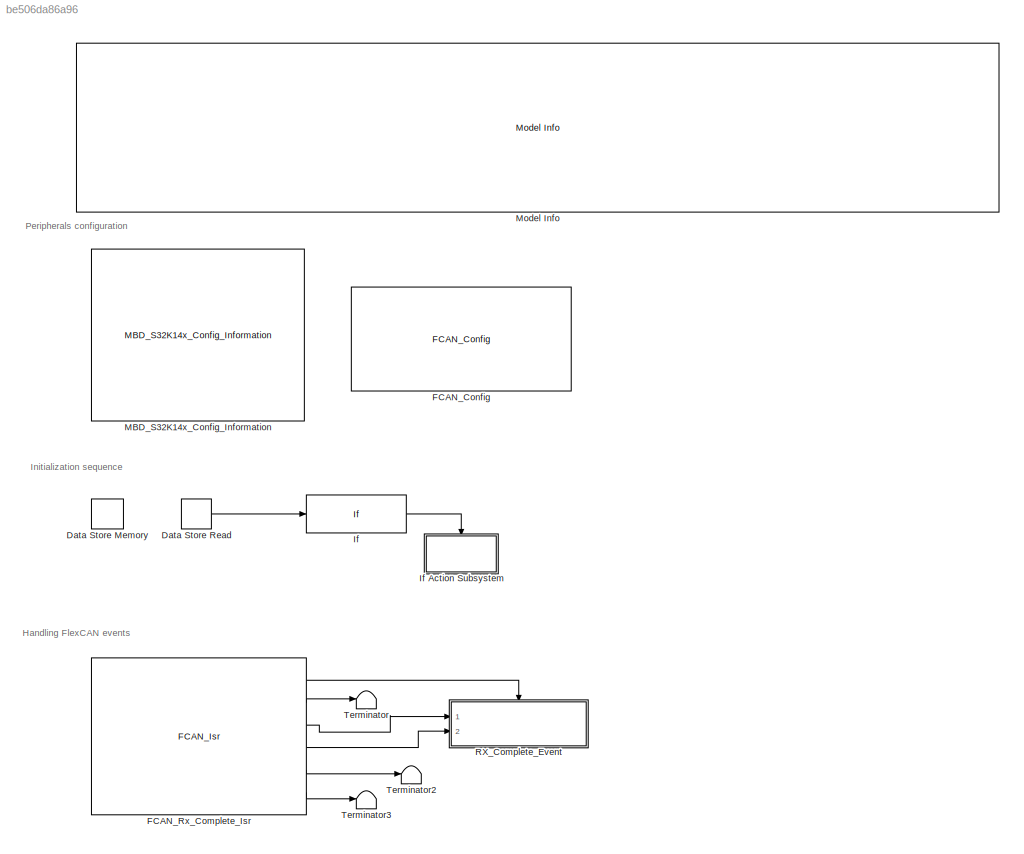
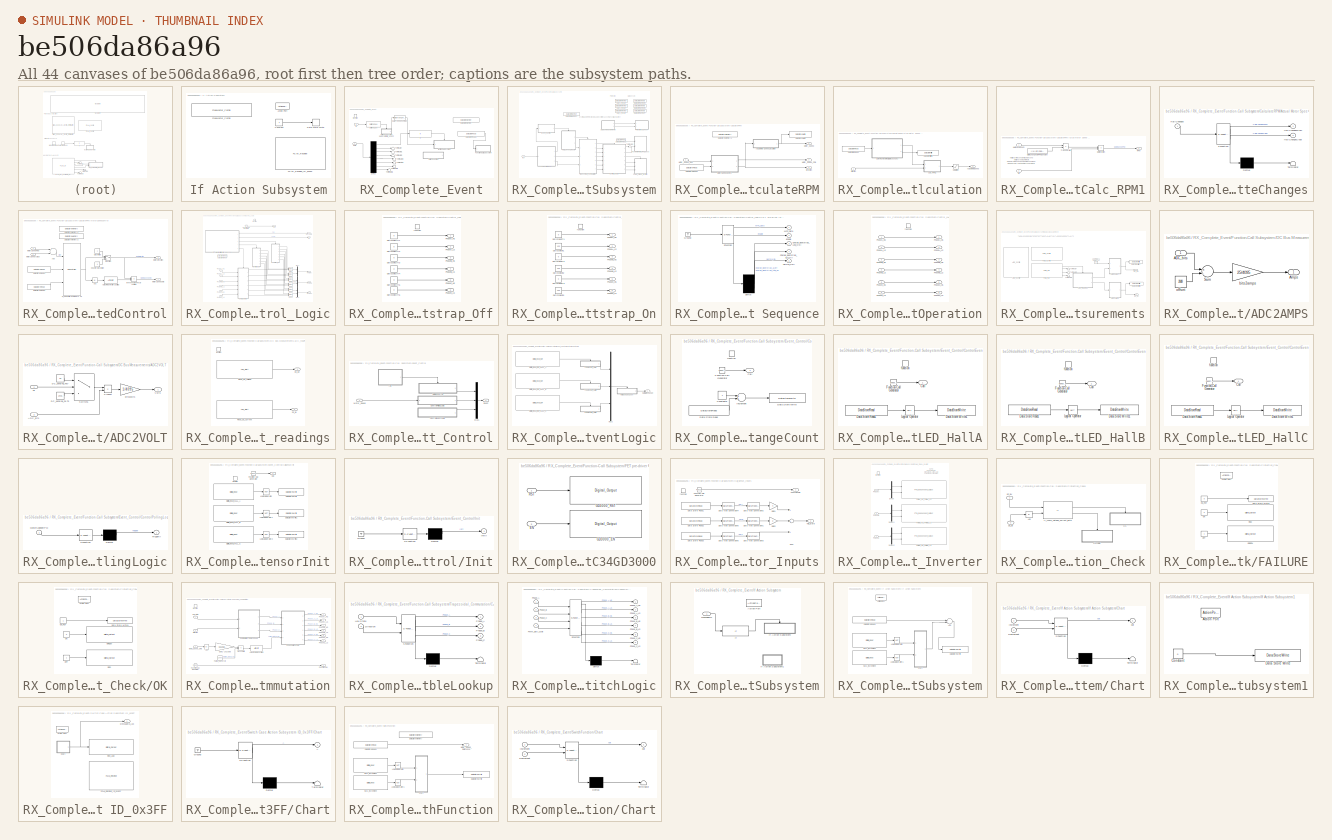
[diagram: thumbnail index - all 44 canvases of the model, root first then tree order]
MODEL slx_be506da86a96
KIND model
CONFIG AbsTol = auto
CONFIG EnableMultiTasking = on
CONFIG FixedStep = 0.1
CONFIG InitFcn = mbd_s32k14_consistency_checks(bdroot(gcs));
CONFIG MaxStep = auto
CONFIG MinStep = auto
CONFIG RelTol = 1e-3
CONFIG SampleTimeConstraint = Unconstrained
CONFIG Solver = FixedStepDiscrete
CONFIG SolverName = FixedStepDiscrete
CONFIG StartTime = 0.0
CONFIG StopTime = 10.0
WORKSPACE source: MAT-file member
WORKSPACE MCOS: class17 (value not decoded)
BLOCK [DataStoreMemory] Data Store Memory
  DataStoreName = Once
  OutDataTypeStr = uint32
  ReadBeforeWriteMsg = warning
  ShowAdditionalParam = off
  WriteAfterReadMsg = warning
  WriteAfterWriteMsg = warning
BLOCK [DataStoreRead] Data Store Read
  DataStoreName = Once
  Ports = [0, 1]
BLOCK [Reference] FCAN_Config  REF=mbd_s32k14_ec_toolbox/S32K14x/Communication Blocks/Flex CAN Blocks/FCAN_Config
  Ports = []
  Priority = 1
  SourceBlock = mbd_s32k14_ec_toolbox/S32K14x/Communication Blocks/Flex CAN Blocks/FCAN_Config
  SourceType = fcan_s32k14_config
BLOCK [Reference] FCAN_Rx_Complete_Isr  REF=mbd_s32k14_ec_toolbox/S32K14x/Communication Blocks/Flex CAN Blocks/FCAN_Isr
  Ports = [0, 6]
  SourceBlock = mbd_s32k14_ec_toolbox/S32K14x/Communication Blocks/Flex CAN Blocks/FCAN_Isr
  SourceType = fcan_s32k14_isr
BLOCK [If] If
  IfExpression = u1 == 0
  Ports = [1, 1]
  ShowElse = off
BLOCK [SubSystem] If Action Subsystem
  Ports = [0, 0, 0, 0, 0, 0, 0, 1]
  RequestExecContextInheritance = off
  TreatAsAtomicUnit = on
  Variant = off
BLOCK [ActionPort] If Action Subsystem/Action Port
  ActionType = then
BLOCK [Constant] If Action Subsystem/Constant
  OutDataTypeStr = uint32
BLOCK [DataStoreWrite] If Action Subsystem/Data Store Write
  DataStoreName = Once
  Ports = [1]
BLOCK [Reference] If Action Subsystem/FCAN_Receive_ID_0x3FF  REF=mbd_s32k14_ec_toolbox/S32K14x/Communication Blocks/Flex CAN Blocks/FCAN_Receive
  Ports = []
  SourceBlock = mbd_s32k14_ec_toolbox/S32K14x/Communication Blocks/Flex CAN Blocks/FCAN_Receive
  SourceType = fcan_s32k14_receive
BLOCK [Reference] If Action Subsystem/FreeMaster_Config  REF=mbd_s32k14_ec_toolbox/S32K14x/Utility Blocks/FreeMaster_Config
  Ports = []
  SourceBlock = mbd_s32k14_ec_toolbox/S32K14x/Utility Blocks/FreeMaster_Config
  SourceType = fm_s32k14_config
BLOCK [Reference] MBD_S32K14x_Config_Information  REF=mbd_s32k14_ec_toolbox/S32K14x/MBD_S32K14x_Config_Information
  Ports = []
  SourceBlock = mbd_s32k14_ec_toolbox/S32K14x/MBD_S32K14x_Config_Information
  SourceType = MBDTBX_EC_S32K14
BLOCK [Reference] Model Info  REF=simulink/Model-Wide
Utilities/Model Info
  Ports = []
  SourceBlock = simulink/Model-Wide\nUtilities/Model Info
  SourceProductBaseCode = SL
  SourceProductName = Simulink
  SourceType = CMBlock
BLOCK [SubSystem] RX_Complete_Event
  Ports = [2, 0, 0, 1]
  RTWSystemCode = Nonreusable function
  RequestExecContextInheritance = off
  TreatAsAtomicUnit = on
  Variant = off
BLOCK [Inport] RX_Complete_Event/Data
  IconDisplay = Port number
  Port = 2
BLOCK [DataStoreMemory] RX_Complete_Event/Data Store Memory
  DataStoreName = MotorSpeedReqFreemaster
  OutDataTypeStr = int16
  ReadBeforeWriteMsg = warning
  ShowAdditionalParam = off
  SignalType = real
  WriteAfterReadMsg = warning
  WriteAfterWriteMsg = warning
BLOCK [DataStoreRead] RX_Complete_Event/Data Store Read2
  DataStoreName = MotorSpeedReqFreemaster
  Ports = [0, 1]
BLOCK [DataTypeConversion] RX_Complete_Event/Data Type Conversion
  OutDataTypeStr = uint8
  RndMeth = Floor
  SaturateOnIntegerOverflow = off
BLOCK [Demux] RX_Complete_Event/Demux
  Outputs = 8
  Ports = [1, 8]
BLOCK [SubSystem] RX_Complete_Event/Function-Call Subsystem
  Ports = [1]
  RequestExecContextInheritance = off
  TreatAsAtomicUnit = on
  Variant = off
BLOCK [SubSystem] RX_Complete_Event/Function-Call Subsystem/CalculateRPM
  Ports = [1, 3]
  RTWFcnNameOpts = Use subsystem name
  RTWFileNameOpts = Use function name
  RTWSystemCode = Nonreusable function
  RequestExecContextInheritance = off
  TreatAsAtomicUnit = on
  Variant = off
BLOCK [SubSystem] RX_Complete_Event/Function-Call Subsystem/CalculateRPM/Actual Motor Speed Calculation
  Ports = [1, 1]
  RequestExecContextInheritance = off
  Variant = off
BLOCK [Outport] RX_Complete_Event/Function-Call Subsystem/CalculateRPM/Actual Motor Speed Calculation/ActualMotorSpeed
  IconDisplay = Port number
BLOCK [SubSystem] RX_Complete_Event/Function-Call Subsystem/CalculateRPM/Actual Motor Speed Calculation/Calc_RPM1
  Ports = [2, 1]
  RequestExecContextInheritance = off
  Variant = off
BLOCK [Inport] RX_Complete_Event/Function-Call Subsystem/CalculateRPM/Actual Motor Speed Calculation/Calc_RPM1/Dir
  IconDisplay = Port number
  Port = 2
  SamplingMode = Sample based
BLOCK [Product] RX_Complete_Event/Function-Call Subsystem/CalculateRPM/Actual Motor Speed Calculation/Calc_RPM1/GetDirection
  InputSameDT = off
  Inputs = **
  OutDataTypeStr = int16
  Ports = [2, 1]
  SaturateOnIntegerOverflow = off
BLOCK [Inport] RX_Complete_Event/Function-Call Subsystem/CalculateRPM/Actual Motor Speed Calculation/Calc_RPM1/HallChangeSum
  IconDisplay = Port number
  SamplingMode = Sample based
BLOCK [Outport] RX_Complete_Event/Function-Call Subsystem/CalculateRPM/Actual Motor Speed Calculation/Calc_RPM1/RPM
  IconDisplay = Port number
BLOCK [Constant] RX_Complete_Event/Function-Call Subsystem/CalculateRPM/Actual Motor Speed Calculation/Calc_RPM1/State Changes to RPM Constant
  OutDataTypeStr = uint16
  Value = ((1/(dt*250))*60)/(6*4)
BLOCK [Product] RX_Complete_Event/Function-Call Subsystem/CalculateRPM/Actual Motor Speed Calculation/Calc_RPM1/TransPerMin
  InputSameDT = off
  Inputs = **
  OutDataTypeStr = uint16
  Ports = [2, 1]
  SaturateOnIntegerOverflow = off
BLOCK [DataStoreRead] RX_Complete_Event/Function-Call Subsystem/CalculateRPM/Actual Motor Speed Calculation/Data Store Read2
  DataStoreName = HallStateChangeDelta
  Ports = [0, 1]
BLOCK [DataStoreWrite] RX_Complete_Event/Function-Call Subsystem/CalculateRPM/Actual Motor Speed Calculation/Data Store Write1
  DataStoreName = HallStateChangeDelta
  Ports = [1]
BLOCK [Inport] RX_Complete_Event/Function-Call Subsystem/CalculateRPM/Actual Motor Speed Calculation/Direction
  IconDisplay = Port number
  SamplingMode = Sample based
BLOCK [SubSystem] RX_Complete_Event/Function-Call Subsystem/CalculateRPM/Actual Motor Speed Calculation/GatherNumberOfHallStateChanges
  ErrorFcn = Stateflow.Translate.translate
  PermitHierarchicalResolution = ExplicitOnly
  Ports = [1, 2]
  RequestExecContextInheritance = off
  SFBlockType = Chart
  TreatAsAtomicUnit = on
  Variant = off
BLOCK [Demux] RX_Complete_Event/Function-Call Subsystem/CalculateRPM/Actual Motor Speed Calculation/GatherNumberOfHallStateChanges/ Demux 
  Outputs = 1
  Ports = [1, 1]
BLOCK [S-Function] RX_Complete_Event/Function-Call Subsystem/CalculateRPM/Actual Motor Speed Calculation/GatherNumberOfHallStateChanges/ SFunction 
  EnableBusSupport = on
  FunctionName = sf_sfun
  PortCounts = [1 3]
  Ports = [1, 3]
  SFcnIsStateOwnerBlock = off
  SFunctionDeploymentMode = off
  Tag = Stateflow S-Function flexcan_can_fd_slave_s32k14 3
BLOCK [Terminator] RX_Complete_Event/Function-Call Subsystem/CalculateRPM/Actual Motor Speed Calculation/GatherNumberOfHallStateChanges/ Terminator 
BLOCK [Outport] RX_Complete_Event/Function-Call Subsystem/CalculateRPM/Actual Motor Speed Calculation/GatherNumberOfHallStateChanges/HallChangeClear
  IconDisplay = Port number
  Port = 2
BLOCK [Inport] RX_Complete_Event/Function-Call Subsystem/CalculateRPM/Actual Motor Speed Calculation/GatherNumberOfHallStateChanges/HallChanges
  IconDisplay = Port number
BLOCK [Outport] RX_Complete_Event/Function-Call Subsystem/CalculateRPM/Actual Motor Speed Calculation/GatherNumberOfHallStateChanges/HallChangesSum
  IconDisplay = Port number
BLOCK [Saturate] RX_Complete_Event/Function-Call Subsystem/CalculateRPM/Actual Motor Speed Calculation/Saturation
  InputPortMap = u0
  LowerLimit = -5000
  OutDataTypeStr = int16
  Ports = [1, 1]
  UpperLimit = 5000
BLOCK [DataStoreMemory] RX_Complete_Event/Function-Call Subsystem/CalculateRPM/Data Store Memory1
  DataStoreName = MechanicalRPM
  OutDataTypeStr = int16
  ReadBeforeWriteMsg = warning
  ShowAdditionalParam = off
  SignalType = real
  WriteAfterReadMsg = warning
  WriteAfterWriteMsg = warning
BLOCK [DataStoreRead] RX_Complete_Event/Function-Call Subsystem/CalculateRPM/Data Store Read2
  DataStoreName = MechanicalRPM
  Ports = [0, 1]
BLOCK [DataStoreWrite] RX_Complete_Event/Function-Call Subsystem/CalculateRPM/Data Store Write
  DataStoreName = MechanicalRPM
  Ports = [1]
BLOCK [Outport] RX_Complete_Event/Function-Call Subsystem/CalculateRPM/Direction
  IconDisplay = Port number
  Port = 3
BLOCK [SubSystem] RX_Complete_Event/Function-Call Subsystem/CalculateRPM/MotorSpeedControl
  Ports = [2, 2]
  RequestExecContextInheritance = off
  Variant = off
BLOCK [Abs] RX_Complete_Event/Function-Call Subsystem/CalculateRPM/MotorSpeedControl/Abs
  OutDataTypeStr = uint32
  SaturateOnIntegerOverflow = off
BLOCK [Sum] RX_Complete_Event/Function-Call Subsystem/CalculateRPM/MotorSpeedControl/Add
  AccumDataTypeStr = int32
  InputSameDT = off
  Inputs = +-
  OutDataTypeStr = Inherit: Inherit via internal rule
  Ports = [2, 1]
  SaturateOnIntegerOverflow = off
BLOCK [ArithShift] RX_Complete_Event/Function-Call Subsystem/CalculateRPM/MotorSpeedControl/Adjust PI Controller Scalling
  BitShiftDirection = Right
  BitShiftNumber = 16
  InputPortMap = u0
  Ports = [1, 1]
BLOCK [Constant] RX_Complete_Event/Function-Call Subsystem/CalculateRPM/MotorSpeedControl/ClockWise
  OutDataTypeStr = int8
BLOCK [Constant] RX_Complete_Event/Function-Call Subsystem/CalculateRPM/MotorSpeedControl/CounterClockWise
  OutDataTypeStr = int8
  Value = -1
BLOCK [DataStoreMemory] RX_Complete_Event/Function-Call Subsystem/CalculateRPM/MotorSpeedControl/Data Store Memory1
  DataStoreName = SpeedControllerPropGain
  InitialValue = 30000
  OutDataTypeStr = int32
  ReadBeforeWriteMsg = warning
  ShowAdditionalParam = off
  SignalType = real
  WriteAfterReadMsg = warning
  WriteAfterWriteMsg = warning
BLOCK [DataStoreMemory] RX_Complete_Event/Function-Call Subsystem/CalculateRPM/MotorSpeedControl/Data Store Memory2
  DataStoreName = SpeedControllerIntegGain
  InitialValue = 20000
  OutDataTypeStr = int32
  ReadBeforeWriteMsg = warning
  ShowAdditionalParam = off
  SignalType = real
  WriteAfterReadMsg = warning
  WriteAfterWriteMsg = warning
BLOCK [DataStoreRead] RX_Complete_Event/Function-Call Subsystem/CalculateRPM/MotorSpeedControl/Data Store Read1
  DataStoreName = SpeedControllerPropGain
  Ports = [0, 1]
BLOCK [DataStoreRead] RX_Complete_Event/Function-Call Subsystem/CalculateRPM/MotorSpeedControl/Data Store Read2
  DataStoreName = SpeedControllerIntegGain
  Ports = [0, 1]
BLOCK [Switch] RX_Complete_Event/Function-Call Subsystem/CalculateRPM/MotorSpeedControl/Direction
  InputSameDT = off
  OutDataTypeStr = int16
  SaturateOnIntegerOverflow = off
BLOCK [Product] RX_Complete_Event/Function-Call Subsystem/CalculateRPM/MotorSpeedControl/InvertAndSignForDirection
  InputSameDT = off
  Inputs = **
  OutDataTypeStr = int32
  Ports = [2, 1]
  SaturateOnIntegerOverflow = off
BLOCK [Outport] RX_Complete_Event/Function-Call Subsystem/CalculateRPM/MotorSpeedControl/MotorDirection
  IconDisplay = Port number
  Port = 2
BLOCK [Inport] RX_Complete_Event/Function-Call Subsystem/CalculateRPM/MotorSpeedControl/MotorSpeedActual
  IconDisplay = Port number
  Port = 2
BLOCK [Outport] RX_Complete_Event/Function-Call Subsystem/CalculateRPM/MotorSpeedControl/MotorSpeedCmd
  IconDisplay = Port number
BLOCK [Inport] RX_Complete_Event/Function-Call Subsystem/CalculateRPM/MotorSpeedControl/MotorSpeedReq
  IconDisplay = Port number
BLOCK [Reference] RX_Complete_Event/Function-Call Subsystem/CalculateRPM/MotorSpeedControl/PI_Controller Scaled by 2^16  REF=simulink/Continuous/PID Controller
  Ports = [3, 1]
  SourceBlock = simulink/Continuous/PID Controller
  SourceProductBaseCode = SL
  SourceProductName = Simulink
  SourceType = PID 1dof
BLOCK [Outport] RX_Complete_Event/Function-Call Subsystem/CalculateRPM/Motor_Speed
  IconDisplay = Port number
BLOCK [Outport] RX_Complete_Event/Function-Call Subsystem/CalculateRPM/Motor_Speed_Cmd
  IconDisplay = Port number
  Port = 2
BLOCK [Inport] RX_Complete_Event/Function-Call Subsystem/CalculateRPM/Motor_Speed_Req
  IconDisplay = Port number
  SamplingMode = Sample based
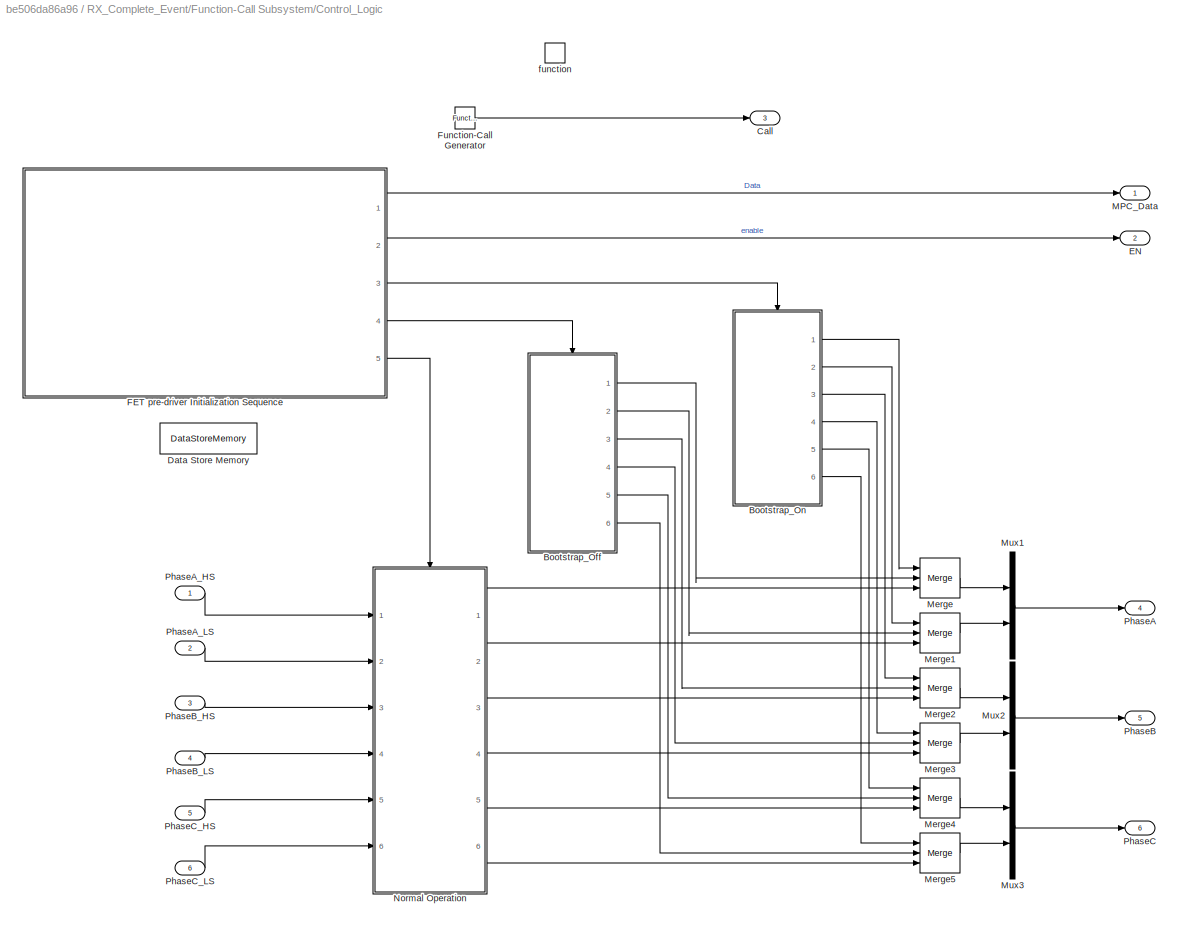
BLOCK [SubSystem] RX_Complete_Event/Function-Call Subsystem/Control_Logic
  Ports = [6, 6, 0, 1]
  RequestExecContextInheritance = off
  Variant = off
BLOCK [SubSystem] RX_Complete_Event/Function-Call Subsystem/Control_Logic/Bootstrap_Off
  Ports = [0, 6, 0, 1]
  RequestExecContextInheritance = off
  TreatAsAtomicUnit = on
  Variant = off
BLOCK [Constant] RX_Complete_Event/Function-Call Subsystem/Control_Logic/Bootstrap_Off/DutyCycleOff1
  OutDataTypeStr = uint32
  SampleTime = -1
  Value = 0
BLOCK [Constant] RX_Complete_Event/Function-Call Subsystem/Control_Logic/Bootstrap_Off/DutyCycleOff2
  OutDataTypeStr = uint32
  SampleTime = -1
  Value = 0
BLOCK [Constant] RX_Complete_Event/Function-Call Subsystem/Control_Logic/Bootstrap_Off/DutyCycleOff3
  OutDataTypeStr = uint32
  SampleTime = -1
  Value = 0
BLOCK [Constant] RX_Complete_Event/Function-Call Subsystem/Control_Logic/Bootstrap_Off/DutyCycleOff4
  OutDataTypeStr = uint32
  SampleTime = -1
  Value = 0
BLOCK [Constant] RX_Complete_Event/Function-Call Subsystem/Control_Logic/Bootstrap_Off/DutyCycleOff5
  OutDataTypeStr = uint32
  SampleTime = -1
  Value = 0
BLOCK [Constant] RX_Complete_Event/Function-Call Subsystem/Control_Logic/Bootstrap_Off/DutyCycleOff6
  OutDataTypeStr = uint32
  SampleTime = -1
  Value = 0
BLOCK [Outport] RX_Complete_Event/Function-Call Subsystem/Control_Logic/Bootstrap_Off/PhaseA_HS
  IconDisplay = Port number
  InitialOutput = 0
BLOCK [Outport] RX_Complete_Event/Function-Call Subsystem/Control_Logic/Bootstrap_Off/PhaseA_LS
  IconDisplay = Port number
  InitialOutput = 0
  Port = 2
BLOCK [Outport] RX_Complete_Event/Function-Call Subsystem/Control_Logic/Bootstrap_Off/PhaseB_HS
  IconDisplay = Port number
  InitialOutput = 0
  Port = 3
BLOCK [Outport] RX_Complete_Event/Function-Call Subsystem/Control_Logic/Bootstrap_Off/PhaseB_LS
  IconDisplay = Port number
  InitialOutput = 0
  Port = 4
BLOCK [Outport] RX_Complete_Event/Function-Call Subsystem/Control_Logic/Bootstrap_Off/PhaseC_HS
  IconDisplay = Port number
  InitialOutput = 0
  Port = 5
BLOCK [Outport] RX_Complete_Event/Function-Call Subsystem/Control_Logic/Bootstrap_Off/PhaseC_LS
  IconDisplay = Port number
  InitialOutput = 0
  Port = 6
BLOCK [TriggerPort] RX_Complete_Event/Function-Call Subsystem/Control_Logic/Bootstrap_Off/function
  Ports = []
  StatesWhenEnabling = held
  TriggerType = function-call
  VariantControl = Variant
BLOCK [SubSystem] RX_Complete_Event/Function-Call Subsystem/Control_Logic/Bootstrap_On
  Ports = [0, 6, 0, 1]
  RequestExecContextInheritance = off
  TreatAsAtomicUnit = on
  Variant = off
BLOCK [Constant] RX_Complete_Event/Function-Call Subsystem/Control_Logic/Bootstrap_On/DutyCycleOff1
  OutDataTypeStr = uint32
  SampleTime = -1
  Value = 0
BLOCK [Constant] RX_Complete_Event/Function-Call Subsystem/Control_Logic/Bootstrap_On/DutyCycleOff2
  OutDataTypeStr = uint32
  SampleTime = -1
  Value = 0
BLOCK [Constant] RX_Complete_Event/Function-Call Subsystem/Control_Logic/Bootstrap_On/DutyCycleOff3
  OutDataTypeStr = uint32
  SampleTime = -1
  Value = 0
BLOCK [Constant] RX_Complete_Event/Function-Call Subsystem/Control_Logic/Bootstrap_On/DutyCycleOn1
  OutDataTypeStr = uint32
  SampleTime = -1
  Value = 100
BLOCK [Constant] RX_Complete_Event/Function-Call Subsystem/Control_Logic/Bootstrap_On/DutyCycleOn2
  OutDataTypeStr = uint32
  SampleTime = -1
  Value = 100
BLOCK [Constant] RX_Complete_Event/Function-Call Subsystem/Control_Logic/Bootstrap_On/DutyCycleOn3
  OutDataTypeStr = uint32
  SampleTime = -1
  Value = 100
BLOCK [Outport] RX_Complete_Event/Function-Call Subsystem/Control_Logic/Bootstrap_On/PhaseA_HS
  IconDisplay = Port number
  InitialOutput = 0
BLOCK [Outport] RX_Complete_Event/Function-Call Subsystem/Control_Logic/Bootstrap_On/PhaseA_LS
  IconDisplay = Port number
  InitialOutput = 0
  Port = 2
BLOCK [Outport] RX_Complete_Event/Function-Call Subsystem/Control_Logic/Bootstrap_On/PhaseB_HS
  IconDisplay = Port number
  InitialOutput = 0
  Port = 3
BLOCK [Outport] RX_Complete_Event/Function-Call Subsystem/Control_Logic/Bootstrap_On/PhaseB_LS
  IconDisplay = Port number
  InitialOutput = 0
  Port = 4
BLOCK [Outport] RX_Complete_Event/Function-Call Subsystem/Control_Logic/Bootstrap_On/PhaseC_HS
  IconDisplay = Port number
  InitialOutput = 0
  Port = 5
BLOCK [Outport] RX_Complete_Event/Function-Call Subsystem/Control_Logic/Bootstrap_On/PhaseC_LS
  IconDisplay = Port number
  InitialOutput = 0
  Port = 6
BLOCK [TriggerPort] RX_Complete_Event/Function-Call Subsystem/Control_Logic/Bootstrap_On/function
  Ports = []
  StatesWhenEnabling = held
  TriggerType = function-call
  VariantControl = Variant
BLOCK [Outport] RX_Complete_Event/Function-Call Subsystem/Control_Logic/Call
  IconDisplay = Port number
  Port = 3
BLOCK [DataStoreMemory] RX_Complete_Event/Function-Call Subsystem/Control_Logic/Data Store Memory
  DataStoreName = MPC_Cmd
  OutDataTypeStr = uint8
  ReadBeforeWriteMsg = warning
  ShowAdditionalParam = off
  SignalType = real
  WriteAfterReadMsg = warning
  WriteAfterWriteMsg = warning
BLOCK [Outport] RX_Complete_Event/Function-Call Subsystem/Control_Logic/EN
  IconDisplay = Port number
  Port = 2
BLOCK [SubSystem] RX_Complete_Event/Function-Call Subsystem/Control_Logic/FET pre-driver Initialization Sequence
  ErrorFcn = Stateflow.Translate.translate
  PermitHierarchicalResolution = ExplicitOnly
  Ports = [0, 5]
  RequestExecContextInheritance = off
  SFBlockType = Chart
  TreatAsAtomicUnit = on
  Variant = off
BLOCK [Demux] RX_Complete_Event/Function-Call Subsystem/Control_Logic/FET pre-driver Initialization Sequence/ Demux 
  Outputs = 3
  Ports = [1, 3]
BLOCK [Ground] RX_Complete_Event/Function-Call Subsystem/Control_Logic/FET pre-driver Initialization Sequence/ Ground 
BLOCK [S-Function] RX_Complete_Event/Function-Call Subsystem/Control_Logic/FET pre-driver Initialization Sequence/ SFunction 
  EnableBusSupport = on
  FunctionName = sf_sfun
  PortCounts = [1 3]
  Ports = [1, 3]
  SFcnIsStateOwnerBlock = off
  SFunctionDeploymentMode = off
  Tag = Stateflow S-Function flexcan_can_fd_slave_s32k14 5
BLOCK [Outport] RX_Complete_Event/Function-Call Subsystem/Control_Logic/FET pre-driver Initialization Sequence/Charge_Bootstrap_All_Off()
  IconDisplay = Port number
  Port = 4
BLOCK [Outport] RX_Complete_Event/Function-Call Subsystem/Control_Logic/FET pre-driver Initialization Sequence/Charge_Bootstrap_Low_On()
  IconDisplay = Port number
  Port = 3
BLOCK [Outport] RX_Complete_Event/Function-Call Subsystem/Control_Logic/FET pre-driver Initialization Sequence/MPC_Data
  IconDisplay = Port number
BLOCK [Outport] RX_Complete_Event/Function-Call Subsystem/Control_Logic/FET pre-driver Initialization Sequence/Normal_Op()
  IconDisplay = Port number
  Port = 5
BLOCK [Outport] RX_Complete_Event/Function-Call Subsystem/Control_Logic/FET pre-driver Initialization Sequence/enable
  IconDisplay = Port number
  Port = 2
BLOCK [Reference] RX_Complete_Event/Function-Call Subsystem/Control_Logic/Function-Call Generator  REF=simulink/Ports &
Subsystems/Function-Call
Generator
  Ports = [0, 1]
  SourceBlock = simulink/Ports &\nSubsystems/Function-Call\nGenerator
  SourceProductBaseCode = SL
  SourceProductName = Simulink
  SourceType = Function-Call Generator
BLOCK [Outport] RX_Complete_Event/Function-Call Subsystem/Control_Logic/MPC_Data
  IconDisplay = Port number
BLOCK [Merge] RX_Complete_Event/Function-Call Subsystem/Control_Logic/Merge
  Inputs = 3
  Ports = [3, 1]
BLOCK [Merge] RX_Complete_Event/Function-Call Subsystem/Control_Logic/Merge1
  Inputs = 3
  Ports = [3, 1]
BLOCK [Merge] RX_Complete_Event/Function-Call Subsystem/Control_Logic/Merge2
  Inputs = 3
  Ports = [3, 1]
BLOCK [Merge] RX_Complete_Event/Function-Call Subsystem/Control_Logic/Merge3
  Inputs = 3
  Ports = [3, 1]
BLOCK [Merge] RX_Complete_Event/Function-Call Subsystem/Control_Logic/Merge4
  Inputs = 3
  Ports = [3, 1]
BLOCK [Merge] RX_Complete_Event/Function-Call Subsystem/Control_Logic/Merge5
  Inputs = 3
  Ports = [3, 1]
BLOCK [Mux] RX_Complete_Event/Function-Call Subsystem/Control_Logic/Mux1
  DisplayOption = bar
  Inputs = 2
  Ports = [2, 1]
BLOCK [Mux] RX_Complete_Event/Function-Call Subsystem/Control_Logic/Mux2
  DisplayOption = bar
  Inputs = 2
  Ports = [2, 1]
BLOCK [Mux] RX_Complete_Event/Function-Call Subsystem/Control_Logic/Mux3
  DisplayOption = bar
  Inputs = 2
  Ports = [2, 1]
BLOCK [SubSystem] RX_Complete_Event/Function-Call Subsystem/Control_Logic/Normal Operation
  Ports = [6, 6, 0, 1]
  RequestExecContextInheritance = off
  TreatAsAtomicUnit = on
  Variant = off
BLOCK [Outport] RX_Complete_Event/Function-Call Subsystem/Control_Logic/Normal Operation/PhaseA_HS
  IconDisplay = Port number
  InitialOutput = 0
BLOCK [Inport] RX_Complete_Event/Function-Call Subsystem/Control_Logic/Normal Operation/PhaseA_HS 
  IconDisplay = Port number
BLOCK [Outport] RX_Complete_Event/Function-Call Subsystem/Control_Logic/Normal Operation/PhaseA_LS
  IconDisplay = Port number
  InitialOutput = 0
  Port = 2
BLOCK [Inport] RX_Complete_Event/Function-Call Subsystem/Control_Logic/Normal Operation/PhaseA_LS 
  IconDisplay = Port number
  Port = 2
BLOCK [Outport] RX_Complete_Event/Function-Call Subsystem/Control_Logic/Normal Operation/PhaseB_HS
  IconDisplay = Port number
  InitialOutput = 0
  Port = 3
BLOCK [Inport] RX_Complete_Event/Function-Call Subsystem/Control_Logic/Normal Operation/PhaseB_HS 
  IconDisplay = Port number
  Port = 3
BLOCK [Outport] RX_Complete_Event/Function-Call Subsystem/Control_Logic/Normal Operation/PhaseB_LS
  IconDisplay = Port number
  InitialOutput = 0
  Port = 4
BLOCK [Inport] RX_Complete_Event/Function-Call Subsystem/Control_Logic/Normal Operation/PhaseB_LS 
  IconDisplay = Port number
  Port = 4
BLOCK [Outport] RX_Complete_Event/Function-Call Subsystem/Control_Logic/Normal Operation/PhaseC_HS
  IconDisplay = Port number
  InitialOutput = 0
  Port = 5
BLOCK [Inport] RX_Complete_Event/Function-Call Subsystem/Control_Logic/Normal Operation/PhaseC_HS 
  IconDisplay = Port number
  Port = 5
BLOCK [Outport] RX_Complete_Event/Function-Call Subsystem/Control_Logic/Normal Operation/PhaseC_LS
  IconDisplay = Port number
  InitialOutput = 0
  Port = 6
BLOCK [Inport] RX_Complete_Event/Function-Call Subsystem/Control_Logic/Normal Operation/PhaseC_LS 
  IconDisplay = Port number
  Port = 6
BLOCK [TriggerPort] RX_Complete_Event/Function-Call Subsystem/Control_Logic/Normal Operation/function
  Ports = []
  StatesWhenEnabling = held
  TriggerType = function-call
  VariantControl = Variant
BLOCK [Outport] RX_Complete_Event/Function-Call Subsystem/Control_Logic/PhaseA
  IconDisplay = Port number
  Port = 4
BLOCK [Inport] RX_Complete_Event/Function-Call Subsystem/Control_Logic/PhaseA_HS
  IconDisplay = Port number
BLOCK [Inport] RX_Complete_Event/Function-Call Subsystem/Control_Logic/PhaseA_LS
  IconDisplay = Port number
  Port = 2
BLOCK [Outport] RX_Complete_Event/Function-Call Subsystem/Control_Logic/PhaseB
  IconDisplay = Port number
  Port = 5
BLOCK [Inport] RX_Complete_Event/Function-Call Subsystem/Control_Logic/PhaseB_HS
  IconDisplay = Port number
  Port = 3
BLOCK [Inport] RX_Complete_Event/Function-Call Subsystem/Control_Logic/PhaseB_LS
  IconDisplay = Port number
  Port = 4
BLOCK [Outport] RX_Complete_Event/Function-Call Subsystem/Control_Logic/PhaseC
  IconDisplay = Port number
  Port = 6
BLOCK [Inport] RX_Complete_Event/Function-Call Subsystem/Control_Logic/PhaseC_HS
  IconDisplay = Port number
  Port = 5
BLOCK [Inport] RX_Complete_Event/Function-Call Subsystem/Control_Logic/PhaseC_LS
  IconDisplay = Port number
  Port = 6
BLOCK [TriggerPort] RX_Complete_Event/Function-Call Subsystem/Control_Logic/function
  Ports = []
  StatesWhenEnabling = held
  TriggerType = function-call
  VariantControl = Variant
BLOCK [SubSystem] RX_Complete_Event/Function-Call Subsystem/DC Bus Measurements
  Ports = [0, 2]
  Priority = 6
  RequestExecContextInheritance = off
  Variant = off
BLOCK [SubSystem] RX_Complete_Event/Function-Call Subsystem/DC Bus Measurements/ADC2AMPS
  Ports = [1, 1]
  RequestExecContextInheritance = off
  Variant = off
BLOCK [Inport] RX_Complete_Event/Function-Call Subsystem/DC Bus Measurements/ADC2AMPS/ADC_bits
  IconDisplay = Port number
BLOCK [Outport] RX_Complete_Event/Function-Call Subsystem/DC Bus Measurements/ADC2AMPS/Amps
  IconDisplay = Port number
BLOCK [Sum] RX_Complete_Event/Function-Call Subsystem/DC Bus Measurements/ADC2AMPS/Sum
  InputSameDT = off
  Inputs = +-
  OutDataTypeStr = single
  Ports = [2, 1]
  SaturateOnIntegerOverflow = off
BLOCK [Gain] RX_Complete_Event/Function-Call Subsystem/DC Bus Measurements/ADC2AMPS/bits2amps
  Gain = 25/4095
  OutDataTypeStr = single
  ParamDataTypeStr = Inherit: Inherit via internal rule
  SaturateOnIntegerOverflow = off
BLOCK [Constant] RX_Complete_Event/Function-Call Subsystem/DC Bus Measurements/ADC2AMPS/offset
  OutDataTypeStr = uint32
  Value = 2048
BLOCK [SubSystem] RX_Complete_Event/Function-Call Subsystem/DC Bus Measurements/ADC2VOLT
  Ports = [2, 1]
  RequestExecContextInheritance = off
  Variant = off
BLOCK [Inport] RX_Complete_Event/Function-Call Subsystem/DC Bus Measurements/ADC2VOLT/ADC_bits
  IconDisplay = Port number
  Port = 2
BLOCK [Constant] RX_Complete_Event/Function-Call Subsystem/DC Bus Measurements/ADC2VOLT/DC_sensing_29.75
  OutDataTypeStr = single
  Value = 29.75
BLOCK [Constant] RX_Complete_Event/Function-Call Subsystem/DC Bus Measurements/ADC2VOLT/DC_sensing_45V
  OutDataTypeStr = single
  Value = 45
BLOCK [Inport] RX_Complete_Event/Function-Call Subsystem/DC Bus Measurements/ADC2VOLT/J8
  IconDisplay = Port number
BLOCK [Product] RX_Complete_Event/Function-Call Subsystem/DC Bus Measurements/ADC2VOLT/Product
  InputSameDT = off
  OutDataTypeStr = single
  Ports = [2, 1]
  RndMeth = Floor
  SaturateOnIntegerOverflow = off
BLOCK [Switch] RX_Complete_Event/Function-Call Subsystem/DC Bus Measurements/ADC2VOLT/Switch1
  Criteria = u2 > Threshold
  InputSameDT = off
  SaturateOnIntegerOverflow = off
BLOCK [Outport] RX_Complete_Event/Function-Call Subsystem/DC Bus Measurements/ADC2VOLT/Volts
  IconDisplay = Port number
BLOCK [Gain] RX_Complete_Event/Function-Call Subsystem/DC Bus Measurements/ADC2VOLT/bits2volts
  Gain = 1/4095
  OutDataTypeStr = single
  ParamDataTypeStr = Inherit: Inherit via internal rule
  SaturateOnIntegerOverflow = off
BLOCK [Reference] RX_Complete_Event/Function-Call Subsystem/DC Bus Measurements/ADC_Config  REF=mbd_s32k14_ec_toolbox/S32K14x/Motor Control Blocks/ADC Blocks/ADC_Config
  Ports = []
  Priority = 1
  SourceBlock = mbd_s32k14_ec_toolbox/S32K14x/Motor Control Blocks/ADC Blocks/ADC_Config
  SourceType = adc_s32k14_config_block
BLOCK [SubSystem] RX_Complete_Event/Function-Call Subsystem/DC Bus Measurements/ADC_readings
  Ports = [0, 2, 0, 1]
  RTWSystemCode = Nonreusable function
  RequestExecContextInheritance = off
  TreatAsAtomicUnit = on
  Variant = off
BLOCK [Outport] RX_Complete_Event/Function-Call Subsystem/DC Bus Measurements/ADC_readings/DC_BI
  IconDisplay = Port number
  Port = 2
BLOCK [Outport] RX_Complete_Event/Function-Call Subsystem/DC Bus Measurements/ADC_readings/DC_BV
  IconDisplay = Port number
BLOCK [Reference] RX_Complete_Event/Function-Call Subsystem/DC Bus Measurements/ADC_readings/Read_DC_Current  REF=mbd_s32k14_ec_toolbox/S32K14x/Motor Control Blocks/ADC Blocks/ADC_Start
  Ports = [0, 1]
  SourceBlock = mbd_s32k14_ec_toolbox/S32K14x/Motor Control Blocks/ADC Blocks/ADC_Start
  SourceType = adc_s32k14_start_block
BLOCK [Reference] RX_Complete_Event/Function-Call Subsystem/DC Bus Measurements/ADC_readings/Read_DC_Voltage  REF=mbd_s32k14_ec_toolbox/S32K14x/Motor Control Blocks/ADC Blocks/ADC_Start
  Ports = [0, 1]
  SourceBlock = mbd_s32k14_ec_toolbox/S32K14x/Motor Control Blocks/ADC Blocks/ADC_Start
  SourceType = adc_s32k14_start_block
BLOCK [TriggerPort] RX_Complete_Event/Function-Call Subsystem/DC Bus Measurements/ADC_readings/function
  Ports = []
  StatesWhenEnabling = held
  TriggerType = function-call
  VariantControl = Variant
BLOCK [Outport] RX_Complete_Event/Function-Call Subsystem/DC Bus Measurements/DC_BI
  IconDisplay = Port number
  Port = 2
BLOCK [Outport] RX_Complete_Event/Function-Call Subsystem/DC Bus Measurements/DC_BV
  IconDisplay = Port number
BLOCK [DataStoreWrite] RX_Complete_Event/Function-Call Subsystem/DC Bus Measurements/Data Store Write1
  DataStoreName = DC_BusVoltage
  Ports = [1]
BLOCK [DataStoreWrite] RX_Complete_Event/Function-Call Subsystem/DC Bus Measurements/Data Store Write2
  DataStoreName = DC_BusCurrent
  Ports = [1]
BLOCK [Constant] RX_Complete_Event/Function-Call Subsystem/DC Bus Measurements/J8 OPEN = 1 SHORT = 0
  OutDataTypeStr = boolean
BLOCK [Reference] RX_Complete_Event/Function-Call Subsystem/DC Bus Measurements/PDB_Config  REF=mbd_s32k14_ec_toolbox/S32K14x/Motor Control Blocks/PDB Blocks/PDB_Config
  Ports = []
  Priority = 1
  SourceBlock = mbd_s32k14_ec_toolbox/S32K14x/Motor Control Blocks/PDB Blocks/PDB_Config
  SourceType = pdb_s32k14_config_block
BLOCK [Reference] RX_Complete_Event/Function-Call Subsystem/DC Bus Measurements/PDB_ISR  REF=mbd_s32k14_ec_toolbox/S32K14x/Motor Control Blocks/PDB Blocks/PDB_ISR
  Ports = [0, 4]
  Priority = 2
  SourceBlock = mbd_s32k14_ec_toolbox/S32K14x/Motor Control Blocks/PDB Blocks/PDB_ISR
  SourceType = pdb_s32k14_isr_block
BLOCK [Terminator] RX_Complete_Event/Function-Call Subsystem/DC Bus Measurements/Terminator
BLOCK [Terminator] RX_Complete_Event/Function-Call Subsystem/DC Bus Measurements/Terminator1
BLOCK [Terminator] RX_Complete_Event/Function-Call Subsystem/DC Bus Measurements/Terminator2
BLOCK [DataStoreMemory] RX_Complete_Event/Function-Call Subsystem/Data Store Memory2
  DataStoreName = HallStateChangeDelta
  OutDataTypeStr = uint16
  ReadBeforeWriteMsg = warning
  ShowAdditionalParam = off
  SignalType = real
  WriteAfterReadMsg = warning
  WriteAfterWriteMsg = warning
BLOCK [DataStoreMemory] RX_Complete_Event/Function-Call Subsystem/Data Store Memory5
  DataStoreName = HallInputB
  OutDataTypeStr = boolean
  ReadBeforeWriteMsg = warning
  ShowAdditionalParam = off
  SignalType = real
  WriteAfterReadMsg = warning
  WriteAfterWriteMsg = warning
BLOCK [DataStoreMemory] RX_Complete_Event/Function-Call Subsystem/Data Store Memory6
  DataStoreName = HallInputA
  OutDataTypeStr = boolean
  ReadBeforeWriteMsg = warning
  ShowAdditionalParam = off
  SignalType = real
  WriteAfterReadMsg = warning
  WriteAfterWriteMsg = warning
BLOCK [DataStoreMemory] RX_Complete_Event/Function-Call Subsystem/Data Store Memory7
  DataStoreName = HallInputC
  OutDataTypeStr = boolean
  ReadBeforeWriteMsg = warning
  ShowAdditionalParam = off
  SignalType = real
  WriteAfterReadMsg = warning
  WriteAfterWriteMsg = warning
BLOCK [DataStoreRead] RX_Complete_Event/Function-Call Subsystem/Data Store Read2
  DataStoreName = Activate_Inverter
  Ports = [0, 1]
BLOCK [SubSystem] RX_Complete_Event/Function-Call Subsystem/Event_Control
  Ports = [1, 1]
  RTWFcnNameOpts = Use subsystem name
  RTWFileNameOpts = Use subsystem name
  RequestExecContextInheritance = off
  TreatAsAtomicUnit = on
  Variant = off
BLOCK [SubSystem] RX_Complete_Event/Function-Call Subsystem/Event_Control/ControlEventLogic
  Ports = [0, 1]
  Priority = 2
  RequestExecContextInheritance = off
  Variant = off
BLOCK [Reference] RX_Complete_Event/Function-Call Subsystem/Event_Control/ControlEventLogic/Digital_Input_ISR_HALL_A  REF=mbd_s32k14_ec_toolbox/S32K14x/Peripheral Interface Blocks/Digital_Input_ISR
  Ports = [0, 1]
  SourceBlock = mbd_s32k14_ec_toolbox/S32K14x/Peripheral Interface Blocks/Digital_Input_ISR
  SourceType = gpi_s32k14_isr
BLOCK [Reference] RX_Complete_Event/Function-Call Subsystem/Event_Control/ControlEventLogic/Digital_Input_ISR_HALL_B  REF=mbd_s32k14_ec_toolbox/S32K14x/Peripheral Interface Blocks/Digital_Input_ISR
  Ports = [0, 1]
  SourceBlock = mbd_s32k14_ec_toolbox/S32K14x/Peripheral Interface Blocks/Digital_Input_ISR
  SourceType = gpi_s32k14_isr
BLOCK [Reference] RX_Complete_Event/Function-Call Subsystem/Event_Control/ControlEventLogic/Digital_Input_ISR_HALL_C  REF=mbd_s32k14_ec_toolbox/S32K14x/Peripheral Interface Blocks/Digital_Input_ISR
  Ports = [0, 1]
  SourceBlock = mbd_s32k14_ec_toolbox/S32K14x/Peripheral Interface Blocks/Digital_Input_ISR
  SourceType = gpi_s32k14_isr
BLOCK [SubSystem] RX_Complete_Event/Function-Call Subsystem/Event_Control/ControlEventLogic/HallChangeCount
  Ports = [0, 1, 0, 1]
  RequestExecContextInheritance = off
  Variant = off
BLOCK [Outport] RX_Complete_Event/Function-Call Subsystem/Event_Control/ControlEventLogic/HallChangeCount/Call
  IconDisplay = Port number
BLOCK [Constant] RX_Complete_Event/Function-Call Subsystem/Event_Control/ControlEventLogic/HallChangeCount/Constant5
  OutDataTypeStr = uint16
BLOCK [DataStoreRead] RX_Complete_Event/Function-Call Subsystem/Event_Control/ControlEventLogic/HallChangeCount/Data Store Read
  DataStoreName = HallStateChangeDelta
  Ports = [0, 1]
BLOCK [DataStoreWrite] RX_Complete_Event/Function-Call Subsystem/Event_Control/ControlEventLogic/HallChangeCount/Data Store Write
  DataStoreName = HallStateChangeDelta
  Ports = [1]
BLOCK [Reference] RX_Complete_Event/Function-Call Subsystem/Event_Control/ControlEventLogic/HallChangeCount/Function-Call Generator  REF=simulink/Ports &
Subsystems/Function-Call
Generator
  Ports = [0, 1]
  SourceBlock = simulink/Ports &\nSubsystems/Function-Call\nGenerator
  SourceProductBaseCode = SL
  SourceProductName = Simulink
  SourceType = Function-Call Generator
BLOCK [Sum] RX_Complete_Event/Function-Call Subsystem/Event_Control/ControlEventLogic/HallChangeCount/Increment
  AccumDataTypeStr = Inherit: Same as first input
  InputSameDT = off
  OutDataTypeStr = Inherit: Inherit via internal rule
  Ports = [2, 1]
  SaturateOnIntegerOverflow = off
BLOCK [TriggerPort] RX_Complete_Event/Function-Call Subsystem/Event_Control/ControlEventLogic/HallChangeCount/function
  Ports = []
  StatesWhenEnabling = held
  TriggerType = function-call
  VariantControl = Variant
BLOCK [Outport] RX_Complete_Event/Function-Call Subsystem/Event_Control/ControlEventLogic/HallStateChange
  IconDisplay = Port number
BLOCK [Mux] RX_Complete_Event/Function-Call Subsystem/Event_Control/ControlEventLogic/Mux2
  DisplayOption = bar
  Inputs = 3
  Ports = [3, 1]
BLOCK [SubSystem] RX_Complete_Event/Function-Call Subsystem/Event_Control/ControlEventLogic/ToggleLED_HallA
  Ports = [0, 1, 0, 1]
  RequestExecContextInheritance = off
  Variant = off
BLOCK [Outport] RX_Complete_Event/Function-Call Subsystem/Event_Control/ControlEventLogic/ToggleLED_HallA/Call
  IconDisplay = Port number
BLOCK [DataStoreRead] RX_Complete_Event/Function-Call Subsystem/Event_Control/ControlEventLogic/ToggleLED_HallA/Data Store Read1
  DataStoreName = HallInputA
  Ports = [0, 1]
BLOCK [DataStoreWrite] RX_Complete_Event/Function-Call Subsystem/Event_Control/ControlEventLogic/ToggleLED_HallA/Data Store Write1
  DataStoreName = HallInputA
  Ports = [1]
BLOCK [Reference] RX_Complete_Event/Function-Call Subsystem/Event_Control/ControlEventLogic/ToggleLED_HallA/Function-Call Generator  REF=simulink/Ports &
Subsystems/Function-Call
Generator
  Ports = [0, 1]
  SourceBlock = simulink/Ports &\nSubsystems/Function-Call\nGenerator
  SourceProductBaseCode = SL
  SourceProductName = Simulink
  SourceType = Function-Call Generator
BLOCK [Logic] RX_Complete_Event/Function-Call Subsystem/Event_Control/ControlEventLogic/ToggleLED_HallA/Logical Operator
  AllPortsSameDT = off
  Operator = NOT
  OutDataTypeStr = boolean
  Ports = [1, 1]
BLOCK [TriggerPort] RX_Complete_Event/Function-Call Subsystem/Event_Control/ControlEventLogic/ToggleLED_HallA/function
  Ports = []
  StatesWhenEnabling = held
  TriggerType = function-call
  VariantControl = Variant
BLOCK [SubSystem] RX_Complete_Event/Function-Call Subsystem/Event_Control/ControlEventLogic/ToggleLED_HallB
  Ports = [0, 1, 0, 1]
  RequestExecContextInheritance = off
  Variant = off
BLOCK [Outport] RX_Complete_Event/Function-Call Subsystem/Event_Control/ControlEventLogic/ToggleLED_HallB/Call
  IconDisplay = Port number
BLOCK [DataStoreRead] RX_Complete_Event/Function-Call Subsystem/Event_Control/ControlEventLogic/ToggleLED_HallB/Data Store Read1
  DataStoreName = HallInputB
  Ports = [0, 1]
BLOCK [DataStoreWrite] RX_Complete_Event/Function-Call Subsystem/Event_Control/ControlEventLogic/ToggleLED_HallB/Data Store Write1
  DataStoreName = HallInputB
  Ports = [1]
BLOCK [Reference] RX_Complete_Event/Function-Call Subsystem/Event_Control/ControlEventLogic/ToggleLED_HallB/Function-Call Generator  REF=simulink/Ports &
Subsystems/Function-Call
Generator
  Ports = [0, 1]
  SourceBlock = simulink/Ports &\nSubsystems/Function-Call\nGenerator
  SourceProductBaseCode = SL
  SourceProductName = Simulink
  SourceType = Function-Call Generator
BLOCK [Logic] RX_Complete_Event/Function-Call Subsystem/Event_Control/ControlEventLogic/ToggleLED_HallB/Logical Operator
  AllPortsSameDT = off
  Operator = NOT
  OutDataTypeStr = boolean
  Ports = [1, 1]
BLOCK [TriggerPort] RX_Complete_Event/Function-Call Subsystem/Event_Control/ControlEventLogic/ToggleLED_HallB/function
  Ports = []
  StatesWhenEnabling = held
  TriggerType = function-call
  VariantControl = Variant
BLOCK [SubSystem] RX_Complete_Event/Function-Call Subsystem/Event_Control/ControlEventLogic/ToggleLED_HallC
  Ports = [0, 1, 0, 1]
  RequestExecContextInheritance = off
  Variant = off
BLOCK [Outport] RX_Complete_Event/Function-Call Subsystem/Event_Control/ControlEventLogic/ToggleLED_HallC/Call
  IconDisplay = Port number
BLOCK [DataStoreRead] RX_Complete_Event/Function-Call Subsystem/Event_Control/ControlEventLogic/ToggleLED_HallC/Data Store Read1
  DataStoreName = HallInputC
  Ports = [0, 1]
BLOCK [DataStoreWrite] RX_Complete_Event/Function-Call Subsystem/Event_Control/ControlEventLogic/ToggleLED_HallC/Data Store Write1
  DataStoreName = HallInputC
  Ports = [1]
BLOCK [Reference] RX_Complete_Event/Function-Call Subsystem/Event_Control/ControlEventLogic/ToggleLED_HallC/Function-Call Generator  REF=simulink/Ports &
Subsystems/Function-Call
Generator
  Ports = [0, 1]
  SourceBlock = simulink/Ports &\nSubsystems/Function-Call\nGenerator
  SourceProductBaseCode = SL
  SourceProductName = Simulink
  SourceType = Function-Call Generator
BLOCK [Logic] RX_Complete_Event/Function-Call Subsystem/Event_Control/ControlEventLogic/ToggleLED_HallC/Logical Operator
  AllPortsSameDT = off
  Operator = NOT
  OutDataTypeStr = boolean
  Ports = [1, 1]
BLOCK [TriggerPort] RX_Complete_Event/Function-Call Subsystem/Event_Control/ControlEventLogic/ToggleLED_HallC/function
  Ports = []
  StatesWhenEnabling = held
  TriggerType = function-call
  VariantControl = Variant
BLOCK [SubSystem] RX_Complete_Event/Function-Call Subsystem/Event_Control/ControlPollingLogic
  ErrorFcn = Stateflow.Translate.translate
  PermitHierarchicalResolution = ExplicitOnly
  Ports = [1, 1]
  RequestExecContextInheritance = off
  SFBlockType = Chart
  TreatAsAtomicUnit = on
  Variant = off
BLOCK [Demux] RX_Complete_Event/Function-Call Subsystem/Event_Control/ControlPollingLogic/ Demux 
  Outputs = 1
  Ports = [1, 1]
BLOCK [S-Function] RX_Complete_Event/Function-Call Subsystem/Event_Control/ControlPollingLogic/ SFunction 
  EnableBusSupport = on
  FunctionName = sf_sfun
  PortCounts = [1 1]
  Ports = [1, 1]
  SFcnIsStateOwnerBlock = off
  SFunctionDeploymentMode = off
  Tag = Stateflow S-Function flexcan_can_fd_slave_s32k14 4
BLOCK [Inport] RX_Complete_Event/Function-Call Subsystem/Event_Control/ControlPollingLogic/MotorSpeedRPM
  IconDisplay = Port number
BLOCK [Outport] RX_Complete_Event/Function-Call Subsystem/Event_Control/ControlPollingLogic/Trigger()
  IconDisplay = Port number
BLOCK [Outport] RX_Complete_Event/Function-Call Subsystem/Event_Control/Event
  IconDisplay = Port number
BLOCK [SubSystem] RX_Complete_Event/Function-Call Subsystem/Event_Control/HallSensorInit
  Ports = [0, 1, 0, 1]
  RTWFcnNameOpts = Use subsystem name
  RTWFileNameOpts = Use subsystem name
  RequestExecContextInheritance = off
  Variant = off
BLOCK [Outport] RX_Complete_Event/Function-Call Subsystem/Event_Control/HallSensorInit/Call
  IconDisplay = Port number
BLOCK [DataStoreWrite] RX_Complete_Event/Function-Call Subsystem/Event_Control/HallSensorInit/Data Store Write
  DataStoreName = HallInputA
  Ports = [1]
BLOCK [DataStoreWrite] RX_Complete_Event/Function-Call Subsystem/Event_Control/HallSensorInit/Data Store Write1
  DataStoreName = HallInputB
  Ports = [1]
BLOCK [DataStoreWrite] RX_Complete_Event/Function-Call Subsystem/Event_Control/HallSensorInit/Data Store Write2
  DataStoreName = HallInputC
  Ports = [1]
BLOCK [Reference] RX_Complete_Event/Function-Call Subsystem/Event_Control/HallSensorInit/Digital_Input_HALL_A  REF=mbd_s32k14_ec_toolbox/S32K14x/Peripheral Interface Blocks/Digital_Input
  Ports = [0, 1]
  SourceBlock = mbd_s32k14_ec_toolbox/S32K14x/Peripheral Interface Blocks/Digital_Input
  SourceType = gpio_s32k14_input
BLOCK [Reference] RX_Complete_Event/Function-Call Subsystem/Event_Control/HallSensorInit/Digital_Input_HALL_B  REF=mbd_s32k14_ec_toolbox/S32K14x/Peripheral Interface Blocks/Digital_Input
  Ports = [0, 1]
  SourceBlock = mbd_s32k14_ec_toolbox/S32K14x/Peripheral Interface Blocks/Digital_Input
  SourceType = gpio_s32k14_input
BLOCK [Reference] RX_Complete_Event/Function-Call Subsystem/Event_Control/HallSensorInit/Digital_Input_HALL_C  REF=mbd_s32k14_ec_toolbox/S32K14x/Peripheral Interface Blocks/Digital_Input
  Ports = [0, 1]
  SourceBlock = mbd_s32k14_ec_toolbox/S32K14x/Peripheral Interface Blocks/Digital_Input
  SourceType = gpio_s32k14_input
BLOCK [Reference] RX_Complete_Event/Function-Call Subsystem/Event_Control/HallSensorInit/Function-Call Generator  REF=simulink/Ports &
Subsystems/Function-Call
Generator
  Ports = [0, 1]
  SourceBlock = simulink/Ports &\nSubsystems/Function-Call\nGenerator
  SourceProductBaseCode = SL
  SourceProductName = Simulink
  SourceType = Function-Call Generator
BLOCK [Logic] RX_Complete_Event/Function-Call Subsystem/Event_Control/HallSensorInit/Logical Operator
  AllPortsSameDT = off
  Operator = NOT
  OutDataTypeStr = boolean
  Ports = [1, 1]
BLOCK [Logic] RX_Complete_Event/Function-Call Subsystem/Event_Control/HallSensorInit/Logical Operator1
  AllPortsSameDT = off
  Operator = NOT
  OutDataTypeStr = boolean
  Ports = [1, 1]
BLOCK [Logic] RX_Complete_Event/Function-Call Subsystem/Event_Control/HallSensorInit/Logical Operator2
  AllPortsSameDT = off
  Operator = NOT
  OutDataTypeStr = boolean
  Ports = [1, 1]
BLOCK [TriggerPort] RX_Complete_Event/Function-Call Subsystem/Event_Control/HallSensorInit/function
  Ports = []
  StatesWhenEnabling = held
  TriggerType = function-call
  VariantControl = Variant
BLOCK [SubSystem] RX_Complete_Event/Function-Call Subsystem/Event_Control/Init
  ErrorFcn = Stateflow.Translate.translate
  PermitHierarchicalResolution = ExplicitOnly
  Ports = [0, 1]
  Priority = 1
  RequestExecContextInheritance = off
  SFBlockType = Chart
  TreatAsAtomicUnit = on
  Variant = off
BLOCK [Demux] RX_Complete_Event/Function-Call Subsystem/Event_Control/Init/ Demux 
  Outputs = 1
  Ports = [1, 1]
BLOCK [Ground] RX_Complete_Event/Function-Call Subsystem/Event_Control/Init/ Ground 
BLOCK [S-Function] RX_Complete_Event/Function-Call Subsystem/Event_Control/Init/ SFunction 
  EnableBusSupport = on
  FunctionName = sf_sfun
  PortCounts = [1 1]
  Ports = [1, 1]
  SFcnIsStateOwnerBlock = off
  SFunctionDeploymentMode = off
  Tag = Stateflow S-Function flexcan_can_fd_slave_s32k14 7
BLOCK [Outport] RX_Complete_Event/Function-Call Subsystem/Event_Control/Init/Init()
  IconDisplay = Port number
BLOCK [Inport] RX_Complete_Event/Function-Call Subsystem/Event_Control/Motor_Speed
  IconDisplay = Port number
BLOCK [Mux] RX_Complete_Event/Function-Call Subsystem/Event_Control/Mux1
  DisplayOption = bar
  Inputs = 3
  Ports = [3, 1]
BLOCK [SubSystem] RX_Complete_Event/Function-Call Subsystem/FET pre-driver MC34GD3000
  Ports = [2]
  RequestExecContextInheritance = off
  Variant = off
BLOCK [Inport] RX_Complete_Event/Function-Call Subsystem/FET pre-driver MC34GD3000/EN
  IconDisplay = Port number
  Port = 2
BLOCK [Reference] RX_Complete_Event/Function-Call Subsystem/FET pre-driver MC34GD3000/GD3000_EN  REF=mbd_s32k14_ec_toolbox/S32K14x/Peripheral Interface Blocks/Digital_Output
  Ports = [1]
  SourceBlock = mbd_s32k14_ec_toolbox/S32K14x/Peripheral Interface Blocks/Digital_Output
  SourceType = gpio_s32k14_output
BLOCK [Reference] RX_Complete_Event/Function-Call Subsystem/FET pre-driver MC34GD3000/GD3000_RST  REF=mbd_s32k14_ec_toolbox/S32K14x/Peripheral Interface Blocks/Digital_Output
  Ports = [1]
  SourceBlock = mbd_s32k14_ec_toolbox/S32K14x/Peripheral Interface Blocks/Digital_Output
  SourceType = gpio_s32k14_output
BLOCK [Inport] RX_Complete_Event/Function-Call Subsystem/FET pre-driver MC34GD3000/RST
  IconDisplay = Port number
BLOCK [DataStoreMemory] RX_Complete_Event/Function-Call Subsystem/Hall_A_Input1
  DataStoreName = DC_BusVoltage
  OutDataTypeStr = single
  ReadBeforeWriteMsg = warning
  ShowAdditionalParam = off
  WriteAfterReadMsg = warning
  WriteAfterWriteMsg = warning
BLOCK [DataStoreMemory] RX_Complete_Event/Function-Call Subsystem/Hall_A_Input2
  DataStoreName = DC_BusCurrent
  OutDataTypeStr = single
  ReadBeforeWriteMsg = warning
  ShowAdditionalParam = off
  WriteAfterReadMsg = warning
  WriteAfterWriteMsg = warning
BLOCK [DataStoreMemory] RX_Complete_Event/Function-Call Subsystem/Hall_A_Input3
  DataStoreName = Activate_Inverter
  OutDataTypeStr = boolean
  ReadBeforeWriteMsg = warning
  ShowAdditionalParam = off
  WriteAfterReadMsg = warning
  WriteAfterWriteMsg = warning
BLOCK [SubSystem] RX_Complete_Event/Function-Call Subsystem/Hall_Sensor_Inputs
  Ports = [0, 2, 0, 1]
  RTWFcnNameOpts = Use subsystem name
  RTWFileNameOpts = Use subsystem name
  RequestExecContextInheritance = off
  Variant = off
BLOCK [DataStoreRead] RX_Complete_Event/Function-Call Subsystem/Hall_Sensor_Inputs/Data Store Read1
  DataStoreName = HallInputA
  Ports = [0, 1]
BLOCK [DataStoreRead] RX_Complete_Event/Function-Call Subsystem/Hall_Sensor_Inputs/Data Store Read2
  DataStoreName = HallInputB
  Ports = [0, 1]
BLOCK [DataStoreRead] RX_Complete_Event/Function-Call Subsystem/Hall_Sensor_Inputs/Data Store Read3
  DataStoreName = HallInputC
  Ports = [0, 1]
BLOCK [DataTypeConversion] RX_Complete_Event/Function-Call Subsystem/Hall_Sensor_Inputs/Data Type Conversion1
  OutDataTypeStr = uint8
  RndMeth = Floor
  SaturateOnIntegerOverflow = off
BLOCK [DataTypeConversion] RX_Complete_Event/Function-Call Subsystem/Hall_Sensor_Inputs/Data Type Conversion2
  OutDataTypeStr = uint8
  RndMeth = Floor
  SaturateOnIntegerOverflow = off
BLOCK [DataTypeConversion] RX_Complete_Event/Function-Call Subsystem/Hall_Sensor_Inputs/Data Type Conversion3
  OutDataTypeStr = uint8
  RndMeth = Floor
  SaturateOnIntegerOverflow = off
BLOCK [DataTypeConversion] RX_Complete_Event/Function-Call Subsystem/Hall_Sensor_Inputs/Data Type Conversion4
  RndMeth = Floor
  SaturateOnIntegerOverflow = off
BLOCK [DataTypeConversion] RX_Complete_Event/Function-Call Subsystem/Hall_Sensor_Inputs/Data Type Conversion5
  RndMeth = Floor
  SaturateOnIntegerOverflow = off
BLOCK [DataTypeConversion] RX_Complete_Event/Function-Call Subsystem/Hall_Sensor_Inputs/Data Type Conversion6
  RndMeth = Floor
  SaturateOnIntegerOverflow = off
BLOCK [Reference] RX_Complete_Event/Function-Call Subsystem/Hall_Sensor_Inputs/Function-Call Generator  REF=simulink/Ports &
Subsystems/Function-Call
Generator
  Ports = [0, 1]
  SourceBlock = simulink/Ports &\nSubsystems/Function-Call\nGenerator
  SourceProductBaseCode = SL
  SourceProductName = Simulink
  SourceType = Function-Call Generator
BLOCK [Outport] RX_Complete_Event/Function-Call Subsystem/Hall_Sensor_Inputs/FunctionCall
  IconDisplay = Port number
BLOCK [Gain] RX_Complete_Event/Function-Call Subsystem/Hall_Sensor_Inputs/Gain1
  Gain = 4
  OutDataTypeStr = uint8
  SaturateOnIntegerOverflow = off
BLOCK [Gain] RX_Complete_Event/Function-Call Subsystem/Hall_Sensor_Inputs/Gain2
  Gain = 2
  OutDataTypeStr = uint8
  SaturateOnIntegerOverflow = off
BLOCK [Outport] RX_Complete_Event/Function-Call Subsystem/Hall_Sensor_Inputs/Hall_State
  IconDisplay = Port number
  Port = 2
BLOCK [Sum] RX_Complete_Event/Function-Call Subsystem/Hall_Sensor_Inputs/Sum
  AccumDataTypeStr = uint8
  InputSameDT = off
  Inputs = +++
  OutDataTypeStr = Inherit: Inherit via internal rule
  Ports = [3, 1]
  SaturateOnIntegerOverflow = off
BLOCK [TriggerPort] RX_Complete_Event/Function-Call Subsystem/Hall_Sensor_Inputs/function
  Ports = []
  StatesWhenEnabling = held
  TriggerType = function-call
  VariantControl = Variant
BLOCK [Inport] RX_Complete_Event/Function-Call Subsystem/In1
  IconDisplay = Port number
BLOCK [SubSystem] RX_Complete_Event/Function-Call Subsystem/Power_Stage_Inverter
  Ports = [3, 0, 0, 1]
  RTWSystemCode = Nonreusable function
  RequestExecContextInheritance = off
  TreatAsAtomicUnit = on
  Variant = off
BLOCK [Demux] RX_Complete_Event/Function-Call Subsystem/Power_Stage_Inverter/Demux
  DisplayOption = bar
  Outputs = 2
  Ports = [1, 2]
BLOCK [Demux] RX_Complete_Event/Function-Call Subsystem/Power_Stage_Inverter/Demux1
  DisplayOption = bar
  Outputs = 2
  Ports = [1, 2]
BLOCK [Demux] RX_Complete_Event/Function-Call Subsystem/Power_Stage_Inverter/Demux2
  DisplayOption = bar
  Outputs = 2
  Ports = [1, 2]
BLOCK [Reference] RX_Complete_Event/Function-Call Subsystem/Power_Stage_Inverter/PWMA_HS_PWMA_LS  REF=mbd_s32k14_ec_toolbox/S32K14x/Motor Control Blocks/FlexTimer Blocks/FTM_Independent_Output
  Ports = [2]
  SourceBlock = mbd_s32k14_ec_toolbox/S32K14x/Motor Control Blocks/FlexTimer Blocks/FTM_Independent_Output
  SourceType = FTM_s32k14_indep_block
BLOCK [Reference] RX_Complete_Event/Function-Call Subsystem/Power_Stage_Inverter/PWMB_HS_PWMB_LS  REF=mbd_s32k14_ec_toolbox/S32K14x/Motor Control Blocks/FlexTimer Blocks/FTM_Independent_Output
  Ports = [2]
  SourceBlock = mbd_s32k14_ec_toolbox/S32K14x/Motor Control Blocks/FlexTimer Blocks/FTM_Independent_Output
  SourceType = FTM_s32k14_indep_block
BLOCK [Reference] RX_Complete_Event/Function-Call Subsystem/Power_Stage_Inverter/PWMC_HS_PWMC_LS  REF=mbd_s32k14_ec_toolbox/S32K14x/Motor Control Blocks/FlexTimer Blocks/FTM_Independent_Output
  Ports = [2]
  SourceBlock = mbd_s32k14_ec_toolbox/S32K14x/Motor Control Blocks/FlexTimer Blocks/FTM_Independent_Output
  SourceType = FTM_s32k14_indep_block
BLOCK [Inport] RX_Complete_Event/Function-Call Subsystem/Power_Stage_Inverter/PhaseA
  IconDisplay = Port number
BLOCK [Inport] RX_Complete_Event/Function-Call Subsystem/Power_Stage_Inverter/PhaseB
  IconDisplay = Port number
  Port = 2
BLOCK [Inport] RX_Complete_Event/Function-Call Subsystem/Power_Stage_Inverter/PhaseC
  IconDisplay = Port number
  Port = 3
BLOCK [TriggerPort] RX_Complete_Event/Function-Call Subsystem/Power_Stage_Inverter/function
  Ports = []
  StatesWhenEnabling = held
  TriggerType = function-call
  VariantControl = Variant
BLOCK [SubSystem] RX_Complete_Event/Function-Call Subsystem/Protection_Check
  Ports = [2]
  RequestExecContextInheritance = off
  Variant = off
BLOCK [Abs] RX_Complete_Event/Function-Call Subsystem/Protection_Check/Abs
  SaturateOnIntegerOverflow = off
BLOCK [Inport] RX_Complete_Event/Function-Call Subsystem/Protection_Check/DC_BI
  IconDisplay = Port number
  Port = 2
BLOCK [Inport] RX_Complete_Event/Function-Call Subsystem/Protection_Check/DC_BV
  IconDisplay = Port number
BLOCK [SubSystem] RX_Complete_Event/Function-Call Subsystem/Protection_Check/FAILURE
  Ports = [0, 0, 0, 0, 0, 0, 0, 1]
  RequestExecContextInheritance = off
  TreatAsAtomicUnit = on
  Variant = off
BLOCK [ActionPort] RX_Complete_Event/Function-Call Subsystem/Protection_Check/FAILURE/Action Port
  ActionType = else
BLOCK [DataStoreWrite] RX_Complete_Event/Function-Call Subsystem/Protection_Check/FAILURE/Data Store Write1
  DataStoreName = Activate_Inverter
  Ports = [1]
BLOCK [Reference] RX_Complete_Event/Function-Call Subsystem/Protection_Check/FAILURE/GREEN  REF=mbd_s32k14_ec_toolbox/S32K14x/Peripheral Interface Blocks/Digital_Output
  Ports = [1]
  SourceBlock = mbd_s32k14_ec_toolbox/S32K14x/Peripheral Interface Blocks/Digital_Output
  SourceType = gpio_s32k14_output
BLOCK [Constant] RX_Complete_Event/Function-Call Subsystem/Protection_Check/FAILURE/OFF
  OutDataTypeStr = boolean
BLOCK [Constant] RX_Complete_Event/Function-Call Subsystem/Protection_Check/FAILURE/ON
  OutDataTypeStr = boolean
  Value = 0
BLOCK [Constant] RX_Complete_Event/Function-Call Subsystem/Protection_Check/FAILURE/ON_RST
  OutDataTypeStr = boolean
  Value = 0
BLOCK [Reference] RX_Complete_Event/Function-Call Subsystem/Protection_Check/FAILURE/RED  REF=mbd_s32k14_ec_toolbox/S32K14x/Peripheral Interface Blocks/Digital_Output
  Ports = [1]
  SourceBlock = mbd_s32k14_ec_toolbox/S32K14x/Peripheral Interface Blocks/Digital_Output
  SourceType = gpio_s32k14_output
BLOCK [If] RX_Complete_Event/Function-Call Subsystem/Protection_Check/If_check_Voltage_Current_limits
  IfExpression = ( (u1 > 8) & (u1 <18) ) & (u2 < 16)
  NumInputs = 2
  Ports = [2, 2]
BLOCK [SubSystem] RX_Complete_Event/Function-Call Subsystem/Protection_Check/OK
  Ports = [0, 0, 0, 0, 0, 0, 0, 1]
  RequestExecContextInheritance = off
  TreatAsAtomicUnit = on
  Variant = off
BLOCK [ActionPort] RX_Complete_Event/Function-Call Subsystem/Protection_Check/OK/Action Port
  ActionType = then
BLOCK [DataStoreWrite] RX_Complete_Event/Function-Call Subsystem/Protection_Check/OK/Data Store Write1
  DataStoreName = Activate_Inverter
  Ports = [1]
BLOCK [Reference] RX_Complete_Event/Function-Call Subsystem/Protection_Check/OK/GREEN  REF=mbd_s32k14_ec_toolbox/S32K14x/Peripheral Interface Blocks/Digital_Output
  Ports = [1]
  SourceBlock = mbd_s32k14_ec_toolbox/S32K14x/Peripheral Interface Blocks/Digital_Output
  SourceType = gpio_s32k14_output
BLOCK [Constant] RX_Complete_Event/Function-Call Subsystem/Protection_Check/OK/OFF
  OutDataTypeStr = boolean
BLOCK [Constant] RX_Complete_Event/Function-Call Subsystem/Protection_Check/OK/ON
  OutDataTypeStr = boolean
  Value = 0
BLOCK [Constant] RX_Complete_Event/Function-Call Subsystem/Protection_Check/OK/ON_RST
  OutDataTypeStr = boolean
BLOCK [Reference] RX_Complete_Event/Function-Call Subsystem/Protection_Check/OK/RED  REF=mbd_s32k14_ec_toolbox/S32K14x/Peripheral Interface Blocks/Digital_Output
  Ports = [1]
  SourceBlock = mbd_s32k14_ec_toolbox/S32K14x/Peripheral Interface Blocks/Digital_Output
  SourceType = gpio_s32k14_output
BLOCK [Terminator] RX_Complete_Event/Function-Call Subsystem/Terminator1
BLOCK [SubSystem] RX_Complete_Event/Function-Call Subsystem/Trapezoidal_Commutation
  Ports = [3, 7, 0, 1]
  RTWFcnNameOpts = Use subsystem name
  RTWFileNameOpts = Use subsystem name
  RequestExecContextInheritance = off
  Variant = off
BLOCK [Abs] RX_Complete_Event/Function-Call Subsystem/Trapezoidal_Commutation/Abs
  OutDataTypeStr = Inherit: Inherit via internal rule
  SaturateOnIntegerOverflow = off
BLOCK [ArithShift] RX_Complete_Event/Function-Call Subsystem/Trapezoidal_Commutation/Adjust For Gain Scalling
  BitShiftDirection = Right
  BitShiftNumber = 16
  InputPortMap = u0
  Ports = [1, 1]
BLOCK [SubSystem] RX_Complete_Event/Function-Call Subsystem/Trapezoidal_Commutation/CommutationTableLookup
  ErrorFcn = Stateflow.Translate.translate
  PermitHierarchicalResolution = ExplicitOnly
  Ports = [2, 3]
  RequestExecContextInheritance = off
  SFBlockType = Chart
  TreatAsAtomicUnit = on
  Variant = off
BLOCK [Demux] RX_Complete_Event/Function-Call Subsystem/Trapezoidal_Commutation/CommutationTableLookup/ Demux 
  Outputs = 1
  Ports = [1, 1]
BLOCK [S-Function] RX_Complete_Event/Function-Call Subsystem/Trapezoidal_Commutation/CommutationTableLookup/ SFunction 
  EnableBusSupport = on
  FunctionName = sf_sfun
  PortCounts = [2 4]
  Ports = [2, 4]
  SFcnIsStateOwnerBlock = off
  SFunctionDeploymentMode = off
  Tag = Stateflow S-Function flexcan_can_fd_slave_s32k14 8
BLOCK [Terminator] RX_Complete_Event/Function-Call Subsystem/Trapezoidal_Commutation/CommutationTableLookup/ Terminator 
BLOCK [Inport] RX_Complete_Event/Function-Call Subsystem/Trapezoidal_Commutation/CommutationTableLookup/Direction
  IconDisplay = Port number
  Port = 2
BLOCK [Inport] RX_Complete_Event/Function-Call Subsystem/Trapezoidal_Commutation/CommutationTableLookup/HallState
  IconDisplay = Port number
BLOCK [Outport] RX_Complete_Event/Function-Call Subsystem/Trapezoidal_Commutation/CommutationTableLookup/Phase_A
  IconDisplay = Port number
BLOCK [Outport] RX_Complete_Event/Function-Call Subsystem/Trapezoidal_Commutation/CommutationTableLookup/Phase_B
  IconDisplay = Port number
  Port = 2
BLOCK [Outport] RX_Complete_Event/Function-Call Subsystem/Trapezoidal_Commutation/CommutationTableLookup/Phase_C
  IconDisplay = Port number
  Port = 3
BLOCK [Inport] RX_Complete_Event/Function-Call Subsystem/Trapezoidal_Commutation/Direction
  IconDisplay = Port number
  Port = 3
BLOCK [Constant] RX_Complete_Event/Function-Call Subsystem/Trapezoidal_Commutation/FullON_DutyCycle
  OutDataTypeStr = uint16
  Value = 1000
BLOCK [Reference] RX_Complete_Event/Function-Call Subsystem/Trapezoidal_Commutation/Function-Call Generator  REF=simulink/Ports &
Subsystems/Function-Call
Generator
  Ports = [0, 1]
  SourceBlock = simulink/Ports &\nSubsystems/Function-Call\nGenerator
  SourceProductBaseCode = SL
  SourceProductName = Simulink
  SourceType = Function-Call Generator
BLOCK [Outport] RX_Complete_Event/Function-Call Subsystem/Trapezoidal_Commutation/FunctionCall
  IconDisplay = Port number
BLOCK [Gain] RX_Complete_Event/Function-Call Subsystem/Trapezoidal_Commutation/Gain 2^16 Scaled
  Gain = 65536/5000
  LockScale = on
  OutDataTypeStr = uint32
  OutMax = 100
  OutMin = 0
  ParamDataTypeStr = uint16
  RndMeth = Round
  SaturateOnIntegerOverflow = off
BLOCK [Inport] RX_Complete_Event/Function-Call Subsystem/Trapezoidal_Commutation/Hall_State
  IconDisplay = Port number
BLOCK [Inport] RX_Complete_Event/Function-Call Subsystem/Trapezoidal_Commutation/Motor_Speed_Cmd
  IconDisplay = Port number
  Port = 2
BLOCK [Outport] RX_Complete_Event/Function-Call Subsystem/Trapezoidal_Commutation/PhaseA_HS
  IconDisplay = Port number
  Port = 2
BLOCK [Outport] RX_Complete_Event/Function-Call Subsystem/Trapezoidal_Commutation/PhaseA_LS
  IconDisplay = Port number
  Port = 3
BLOCK [Outport] RX_Complete_Event/Function-Call Subsystem/Trapezoidal_Commutation/PhaseB_HS
  IconDisplay = Port number
  Port = 4
BLOCK [Outport] RX_Complete_Event/Function-Call Subsystem/Trapezoidal_Commutation/PhaseB_LS
  IconDisplay = Port number
  Port = 5
BLOCK [Outport] RX_Complete_Event/Function-Call Subsystem/Trapezoidal_Commutation/PhaseC_HS
  IconDisplay = Port number
  Port = 6
BLOCK [Outport] RX_Complete_Event/Function-Call Subsystem/Trapezoidal_Commutation/PhaseC_LS
  IconDisplay = Port number
  Port = 7
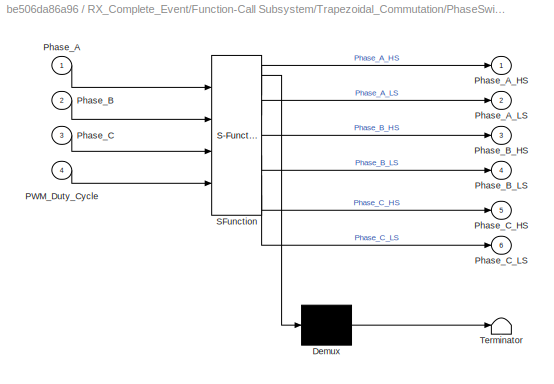
BLOCK [SubSystem] RX_Complete_Event/Function-Call Subsystem/Trapezoidal_Commutation/PhaseSwitchLogic
  ErrorFcn = Stateflow.Translate.translate
  PermitHierarchicalResolution = ExplicitOnly
  Ports = [4, 6]
  RequestExecContextInheritance = off
  SFBlockType = Chart
  TreatAsAtomicUnit = on
  Variant = off
BLOCK [Demux] RX_Complete_Event/Function-Call Subsystem/Trapezoidal_Commutation/PhaseSwitchLogic/ Demux 
  Outputs = 1
  Ports = [1, 1]
BLOCK [S-Function] RX_Complete_Event/Function-Call Subsystem/Trapezoidal_Commutation/PhaseSwitchLogic/ SFunction 
  EnableBusSupport = on
  FunctionName = sf_sfun
  PortCounts = [4 7]
  Ports = [4, 7]
  SFcnIsStateOwnerBlock = off
  SFunctionDeploymentMode = off
  Tag = Stateflow S-Function flexcan_can_fd_slave_s32k14 9
BLOCK [Terminator] RX_Complete_Event/Function-Call Subsystem/Trapezoidal_Commutation/PhaseSwitchLogic/ Terminator 
BLOCK [Inport] RX_Complete_Event/Function-Call Subsystem/Trapezoidal_Commutation/PhaseSwitchLogic/PWM_Duty_Cycle
  IconDisplay = Port number
  Port = 4
BLOCK [Inport] RX_Complete_Event/Function-Call Subsystem/Trapezoidal_Commutation/PhaseSwitchLogic/Phase_A
  IconDisplay = Port number
BLOCK [Outport] RX_Complete_Event/Function-Call Subsystem/Trapezoidal_Commutation/PhaseSwitchLogic/Phase_A_HS
  IconDisplay = Port number
BLOCK [Outport] RX_Complete_Event/Function-Call Subsystem/Trapezoidal_Commutation/PhaseSwitchLogic/Phase_A_LS
  IconDisplay = Port number
  Port = 2
BLOCK [Inport] RX_Complete_Event/Function-Call Subsystem/Trapezoidal_Commutation/PhaseSwitchLogic/Phase_B
  IconDisplay = Port number
  Port = 2
BLOCK [Outport] RX_Complete_Event/Function-Call Subsystem/Trapezoidal_Commutation/PhaseSwitchLogic/Phase_B_HS
  IconDisplay = Port number
  Port = 3
BLOCK [Outport] RX_Complete_Event/Function-Call Subsystem/Trapezoidal_Commutation/PhaseSwitchLogic/Phase_B_LS
  IconDisplay = Port number
  Port = 4
BLOCK [Inport] RX_Complete_Event/Function-Call Subsystem/Trapezoidal_Commutation/PhaseSwitchLogic/Phase_C
  IconDisplay = Port number
  Port = 3
BLOCK [Outport] RX_Complete_Event/Function-Call Subsystem/Trapezoidal_Commutation/PhaseSwitchLogic/Phase_C_HS
  IconDisplay = Port number
  Port = 5
BLOCK [Outport] RX_Complete_Event/Function-Call Subsystem/Trapezoidal_Commutation/PhaseSwitchLogic/Phase_C_LS
  IconDisplay = Port number
  Port = 6
BLOCK [Product] RX_Complete_Event/Function-Call Subsystem/Trapezoidal_Commutation/TransPerMin
  InputSameDT = off
  Inputs = **
  OutDataTypeStr = Inherit: Inherit via back propagation
  Ports = [2, 1]
  SaturateOnIntegerOverflow = off
BLOCK [TriggerPort] RX_Complete_Event/Function-Call Subsystem/Trapezoidal_Commutation/function
  Ports = []
  StatesWhenEnabling = held
  TriggerType = function-call
  VariantControl = Variant
BLOCK [Inport] RX_Complete_Event/ID
  IconDisplay = Port number
BLOCK [If] RX_Complete_Event/If
  IfExpression = u1 >128
  Ports = [1, 1]
  ShowElse = off
BLOCK [SubSystem] RX_Complete_Event/If Action Subsystem
  Ports = [1, 0, 0, 0, 0, 0, 0, 1]
  RequestExecContextInheritance = off
  TreatAsAtomicUnit = on
  Variant = off
BLOCK [ActionPort] RX_Complete_Event/If Action Subsystem/Action Port
  ActionType = then
BLOCK [If] RX_Complete_Event/If Action Subsystem/If
  IfExpression = u1 == 1
  Ports = [1, 1]
  ShowElse = off
BLOCK [SubSystem] RX_Complete_Event/If Action Subsystem/If Action Subsystem
  Ports = [0, 0, 0, 0, 0, 0, 0, 1]
  RequestExecContextInheritance = off
  TreatAsAtomicUnit = on
  Variant = off
BLOCK [ActionPort] RX_Complete_Event/If Action Subsystem/If Action Subsystem/Action Port
  ActionType = then
BLOCK [Sum] RX_Complete_Event/If Action Subsystem/If Action Subsystem/Add
  InputSameDT = off
  OutDataTypeStr = Inherit: Inherit via internal rule
  Ports = [2, 1]
  SaturateOnIntegerOverflow = off
BLOCK [SubSystem] RX_Complete_Event/If Action Subsystem/If Action Subsystem/Chart
  ErrorFcn = Stateflow.Translate.translate
  PermitHierarchicalResolution = ExplicitOnly
  Ports = [2, 1]
  RequestExecContextInheritance = off
  SFBlockType = Chart
  TreatAsAtomicUnit = on
  Variant = off
BLOCK [Demux] RX_Complete_Event/If Action Subsystem/If Action Subsystem/Chart/ Demux 
  Outputs = 1
  Ports = [1, 1]
BLOCK [S-Function] RX_Complete_Event/If Action Subsystem/If Action Subsystem/Chart/ SFunction 
  EnableBusSupport = on
  FunctionName = sf_sfun
  PortCounts = [2 2]
  Ports = [2, 2]
  SFcnIsStateOwnerBlock = off
  SFunctionDeploymentMode = off
  Tag = Stateflow S-Function flexcan_can_fd_slave_s32k14 6
BLOCK [Terminator] RX_Complete_Event/If Action Subsystem/If Action Subsystem/Chart/ Terminator 
BLOCK [Inport] RX_Complete_Event/If Action Subsystem/If Action Subsystem/Chart/Decrement
  IconDisplay = Port number
  Port = 2
BLOCK [Inport] RX_Complete_Event/If Action Subsystem/If Action Subsystem/Chart/Increment
  IconDisplay = Port number
BLOCK [Outport] RX_Complete_Event/If Action Subsystem/If Action Subsystem/Chart/out
  IconDisplay = Port number
BLOCK [DataStoreRead] RX_Complete_Event/If Action Subsystem/If Action Subsystem/Data Store Read1
  DataStoreName = MotorSpeedReqFreemaster
  Ports = [0, 1]
BLOCK [DataStoreWrite] RX_Complete_Event/If Action Subsystem/If Action Subsystem/Data Store Write
  DataStoreName = MotorSpeedReqFreemaster
  Ports = [1]
BLOCK [Logic] RX_Complete_Event/If Action Subsystem/If Action Subsystem/Logical Operator
  AllPortsSameDT = off
  Operator = NOT
  OutDataTypeStr = boolean
  Ports = [1, 1]
BLOCK [Logic] RX_Complete_Event/If Action Subsystem/If Action Subsystem/Logical Operator1
  AllPortsSameDT = off
  Operator = NOT
  OutDataTypeStr = boolean
  Ports = [1, 1]
BLOCK [Reference] RX_Complete_Event/If Action Subsystem/If Action Subsystem/SW2_increment  REF=mbd_s32k14_ec_toolbox/S32K14x/Peripheral Interface Blocks/Digital_Input
  Ports = [0, 1]
  SourceBlock = mbd_s32k14_ec_toolbox/S32K14x/Peripheral Interface Blocks/Digital_Input
  SourceType = gpio_s32k14_input
BLOCK [Reference] RX_Complete_Event/If Action Subsystem/If Action Subsystem/SW3_increment  REF=mbd_s32k14_ec_toolbox/S32K14x/Peripheral Interface Blocks/Digital_Input
  Ports = [0, 1]
  SourceBlock = mbd_s32k14_ec_toolbox/S32K14x/Peripheral Interface Blocks/Digital_Input
  SourceType = gpio_s32k14_input
BLOCK [SubSystem] RX_Complete_Event/If Action Subsystem/If Action Subsystem1
  Commented = on
  Ports = [0, 0, 0, 0, 0, 0, 0, 1]
  RequestExecContextInheritance = off
  TreatAsAtomicUnit = on
  Variant = off
BLOCK [ActionPort] RX_Complete_Event/If Action Subsystem/If Action Subsystem1/Action Port
BLOCK [Constant] RX_Complete_Event/If Action Subsystem/If Action Subsystem1/Constant
  OutDataTypeStr = int16
  Value = 0
BLOCK [DataStoreWrite] RX_Complete_Event/If Action Subsystem/If Action Subsystem1/Data Store Write
  DataStoreName = MotorSpeedReqFreemaster
  Ports = [1]
BLOCK [Inport] RX_Complete_Event/If Action Subsystem/MessageID
  IconDisplay = Port number
BLOCK [SwitchCase] RX_Complete_Event/Switch Case
  CaseConditions = {hex2dec('3FF')}
  Ports = [1, 1]
  ShowDefaultCase = off
BLOCK [SubSystem] RX_Complete_Event/Switch Case Action Subsystem ID_0x3FF
  Ports = [0, 1, 0, 0, 0, 0, 0, 1]
  RequestExecContextInheritance = off
  TreatAsAtomicUnit = on
  Variant = off
BLOCK [ActionPort] RX_Complete_Event/Switch Case Action Subsystem ID_0x3FF/Action Port
  ActionType = case
BLOCK [SubSystem] RX_Complete_Event/Switch Case Action Subsystem ID_0x3FF/Chart
  ErrorFcn = Stateflow.Translate.translate
  PermitHierarchicalResolution = ExplicitOnly
  Ports = [0, 1]
  RequestExecContextInheritance = off
  SFBlockType = Chart
  TreatAsAtomicUnit = on
  Variant = off
BLOCK [Outport] RX_Complete_Event/Switch Case Action Subsystem ID_0x3FF/Chart/ A
  IconDisplay = Port number
BLOCK [Demux] RX_Complete_Event/Switch Case Action Subsystem ID_0x3FF/Chart/ Demux 
  Outputs = 1
  Ports = [1, 1]
BLOCK [Ground] RX_Complete_Event/Switch Case Action Subsystem ID_0x3FF/Chart/ Ground 
BLOCK [S-Function] RX_Complete_Event/Switch Case Action Subsystem ID_0x3FF/Chart/ SFunction 
  EnableBusSupport = on
  FunctionName = sf_sfun
  PortCounts = [1 2]
  Ports = [1, 2]
  SFcnIsStateOwnerBlock = off
  SFunctionDeploymentMode = off
  Tag = Stateflow S-Function flexcan_can_fd_slave_s32k14 2
BLOCK [Terminator] RX_Complete_Event/Switch Case Action Subsystem ID_0x3FF/Chart/ Terminator 
BLOCK [Reference] RX_Complete_Event/Switch Case Action Subsystem ID_0x3FF/FCAN_Receive_ID_0x3FF  REF=mbd_s32k14_ec_toolbox/S32K14x/Communication Blocks/Flex CAN Blocks/FCAN_Receive
  Ports = []
  SourceBlock = mbd_s32k14_ec_toolbox/S32K14x/Communication Blocks/Flex CAN Blocks/FCAN_Receive
  SourceType = fcan_s32k14_receive
BLOCK [Outport] RX_Complete_Event/Switch Case Action Subsystem ID_0x3FF/MessageID_Ack
  IconDisplay = Port number
BLOCK [Reference] RX_Complete_Event/Switch Case Action Subsystem ID_0x3FF/Red_LED  REF=mbd_s32k14_ec_toolbox/S32K14x/Peripheral Interface Blocks/Digital_Output
  Ports = [1]
  SourceBlock = mbd_s32k14_ec_toolbox/S32K14x/Peripheral Interface Blocks/Digital_Output
  SourceType = gpio_s32k14_output
BLOCK [SubSystem] RX_Complete_Event/SwitchFunction
  Commented = on
  Ports = [0, 1]
  RequestExecContextInheritance = off
  TreatAsAtomicUnit = on
  Variant = off
BLOCK [SubSystem] RX_Complete_Event/SwitchFunction/Chart
  ErrorFcn = Stateflow.Translate.translate
  PermitHierarchicalResolution = ExplicitOnly
  Ports = [2, 1]
  RequestExecContextInheritance = off
  SFBlockType = Chart
  TreatAsAtomicUnit = on
  Variant = off
BLOCK [Demux] RX_Complete_Event/SwitchFunction/Chart/ Demux 
  Outputs = 1
  Ports = [1, 1]
BLOCK [S-Function] RX_Complete_Event/SwitchFunction/Chart/ SFunction 
  EnableBusSupport = on
  FunctionName = sf_sfun
  PortCounts = [2 2]
  Ports = [2, 2]
  SFcnIsStateOwnerBlock = off
  SFunctionDeploymentMode = off
  Tag = Stateflow S-Function flexcan_can_fd_slave_s32k14 1
BLOCK [Terminator] RX_Complete_Event/SwitchFunction/Chart/ Terminator 
BLOCK [Inport] RX_Complete_Event/SwitchFunction/Chart/Decrement
  IconDisplay = Port number
  Port = 2
BLOCK [Inport] RX_Complete_Event/SwitchFunction/Chart/Increment
  IconDisplay = Port number
BLOCK [Outport] RX_Complete_Event/SwitchFunction/Chart/out
  IconDisplay = Port number
BLOCK [DataStoreMemory] RX_Complete_Event/SwitchFunction/Data Store Memory
  DataStoreName = MotorSpeedReqFreemaster
  InitialValue = 1000
  OutDataTypeStr = int16
  ReadBeforeWriteMsg = warning
  ShowAdditionalParam = off
  SignalType = real
  WriteAfterReadMsg = warning
  WriteAfterWriteMsg = warning
BLOCK [DataStoreRead] RX_Complete_Event/SwitchFunction/Data Store Read1
  DataStoreName = MotorSpeedReqFreemaster
  Ports = [0, 1]
BLOCK [DataStoreWrite] RX_Complete_Event/SwitchFunction/Data Store Write
  DataStoreName = MotorSpeedReqFreemaster
  Ports = [1]
BLOCK [Logic] RX_Complete_Event/SwitchFunction/Logical Operator
  AllPortsSameDT = off
  Operator = NOT
  OutDataTypeStr = boolean
  Ports = [1, 1]
BLOCK [Logic] RX_Complete_Event/SwitchFunction/Logical Operator1
  AllPortsSameDT = off
  Operator = NOT
  OutDataTypeStr = boolean
  Ports = [1, 1]
BLOCK [Outport] RX_Complete_Event/SwitchFunction/Motor_Speed_Reference
  IconDisplay = Port number
BLOCK [Reference] RX_Complete_Event/SwitchFunction/SW2_increment  REF=mbd_s32k14_ec_toolbox/S32K14x/Peripheral Interface Blocks/Digital_Input
  Ports = [0, 1]
  SourceBlock = mbd_s32k14_ec_toolbox/S32K14x/Peripheral Interface Blocks/Digital_Input
  SourceType = gpio_s32k14_input
BLOCK [Reference] RX_Complete_Event/SwitchFunction/SW3_increment  REF=mbd_s32k14_ec_toolbox/S32K14x/Peripheral Interface Blocks/Digital_Input
  Ports = [0, 1]
  SourceBlock = mbd_s32k14_ec_toolbox/S32K14x/Peripheral Interface Blocks/Digital_Input
  SourceType = gpio_s32k14_input
BLOCK [Terminator] RX_Complete_Event/Terminator
BLOCK [Terminator] RX_Complete_Event/Terminator1
BLOCK [Terminator] RX_Complete_Event/Terminator2
BLOCK [Terminator] RX_Complete_Event/Terminator3
BLOCK [Terminator] RX_Complete_Event/Terminator4
BLOCK [Terminator] RX_Complete_Event/Terminator5
BLOCK [Terminator] RX_Complete_Event/Terminator6
BLOCK [TriggerPort] RX_Complete_Event/function
  Ports = []
  StatesWhenEnabling = held
  TriggerType = function-call
  VariantControl = Variant
BLOCK [Terminator] Terminator
BLOCK [Terminator] Terminator2
BLOCK [Terminator] Terminator3
ANNOTATION (root): Handling FlexCAN events
ANNOTATION (root): Initialization sequence
ANNOTATION (root): Peripherals configuration
ANNOTATION RX_Complete_Event/Function-Call Subsystem: Protection
ANNOTATION RX_Complete_Event/Function-Call Subsystem: Hall Sensors
ANNOTATION RX_Complete_Event/Function-Call Subsystem: Inverter & Motor Protection: Disable Inverter in case of high Voltage/Current
ANNOTATION RX_Complete_Event/Function-Call Subsystem/CalculateRPM/Actual Motor Speed Calculation/Calc_RPM1: Multiply by time constant to get Second Mulitply by 60 to get Minute Divide By State Changes to get Electrical RPM Divide By Pole-Pair to get Mechanical RPM
ANNOTATION RX_Complete_Event/Function-Call Subsystem/DC Bus Measurements: THIS BLOCK IS DESIGN TO PROTECT THE KIT AGAINST VOLTAGE OR CURRENT FAULTS
ANNOTATION RX_Complete_Event/Function-Call Subsystem/Power_Stage_Inverter: NOTE Phase Inputs High Side is Active Low Low Side is Active High
LINE Data Store Read:1 -> If:1
LINE FCAN_Rx_Complete_Isr:1 -> RX_Complete_Event:trigger
LINE FCAN_Rx_Complete_Isr:2 -> Terminator:1
LINE FCAN_Rx_Complete_Isr:3 -> RX_Complete_Event:1
LINE FCAN_Rx_Complete_Isr:4 -> RX_Complete_Event:2
LINE FCAN_Rx_Complete_Isr:5 -> Terminator2:1
LINE FCAN_Rx_Complete_Isr:6 -> Terminator3:1
LINE If Action Subsystem/Constant:1 -> If Action Subsystem/Data Store Write:1
LINE If:1 -> If Action Subsystem:ifaction
LINE RX_Complete_Event/Data Store Read2:1 -> RX_Complete_Event/Function-Call Subsystem:1
LINE RX_Complete_Event/Data Type Conversion:1 -> RX_Complete_Event/If Action Subsystem:1
LINE RX_Complete_Event/Data:1 -> RX_Complete_Event/Demux:1
LINE RX_Complete_Event/Demux:1 -> RX_Complete_Event/If:1
LINE RX_Complete_Event/Demux:2 -> RX_Complete_Event/Terminator:1
LINE RX_Complete_Event/Demux:3 -> RX_Complete_Event/Terminator1:1
LINE RX_Complete_Event/Demux:4 -> RX_Complete_Event/Terminator2:1
LINE RX_Complete_Event/Demux:5 -> RX_Complete_Event/Terminator3:1
LINE RX_Complete_Event/Demux:6 -> RX_Complete_Event/Terminator4:1
LINE RX_Complete_Event/Demux:7 -> RX_Complete_Event/Terminator5:1
LINE RX_Complete_Event/Demux:8 -> RX_Complete_Event/Terminator6:1
LINE RX_Complete_Event/Function-Call Subsystem/CalculateRPM/Actual Motor Speed Calculation/Calc_RPM1/Dir:1 -> RX_Complete_Event/Function-Call Subsystem/CalculateRPM/Actual Motor Speed Calculation/Calc_RPM1/GetDirection:2
LINE RX_Complete_Event/Function-Call Subsystem/CalculateRPM/Actual Motor Speed Calculation/Calc_RPM1/GetDirection:1 -> RX_Complete_Event/Function-Call Subsystem/CalculateRPM/Actual Motor Speed Calculation/Calc_RPM1/RPM:1
LINE RX_Complete_Event/Function-Call Subsystem/CalculateRPM/Actual Motor Speed Calculation/Calc_RPM1/HallChangeSum:1 -> RX_Complete_Event/Function-Call Subsystem/CalculateRPM/Actual Motor Speed Calculation/Calc_RPM1/TransPerMin:1
LINE RX_Complete_Event/Function-Call Subsystem/CalculateRPM/Actual Motor Speed Calculation/Calc_RPM1/State Changes to RPM Constant:1 -> RX_Complete_Event/Function-Call Subsystem/CalculateRPM/Actual Motor Speed Calculation/Calc_RPM1/TransPerMin:2
LINE RX_Complete_Event/Function-Call Subsystem/CalculateRPM/Actual Motor Speed Calculation/Calc_RPM1/TransPerMin:1 -> RX_Complete_Event/Function-Call Subsystem/CalculateRPM/Actual Motor Speed Calculation/Calc_RPM1/GetDirection:1
LINE RX_Complete_Event/Function-Call Subsystem/CalculateRPM/Actual Motor Speed Calculation/Calc_RPM1:1 -> RX_Complete_Event/Function-Call Subsystem/CalculateRPM/Actual Motor Speed Calculation/Saturation:1
LINE RX_Complete_Event/Function-Call Subsystem/CalculateRPM/Actual Motor Speed Calculation/Data Store Read2:1 -> RX_Complete_Event/Function-Call Subsystem/CalculateRPM/Actual Motor Speed Calculation/GatherNumberOfHallStateChanges:1
LINE RX_Complete_Event/Function-Call Subsystem/CalculateRPM/Actual Motor Speed Calculation/Direction:1 -> RX_Complete_Event/Function-Call Subsystem/CalculateRPM/Actual Motor Speed Calculation/Calc_RPM1:2
LINE RX_Complete_Event/Function-Call Subsystem/CalculateRPM/Actual Motor Speed Calculation/GatherNumberOfHallStateChanges:1 -> RX_Complete_Event/Function-Call Subsystem/CalculateRPM/Actual Motor Speed Calculation/Calc_RPM1:1
LINE RX_Complete_Event/Function-Call Subsystem/CalculateRPM/Actual Motor Speed Calculation/GatherNumberOfHallStateChanges:2 -> RX_Complete_Event/Function-Call Subsystem/CalculateRPM/Actual Motor Speed Calculation/Data Store Write1:1
LINE RX_Complete_Event/Function-Call Subsystem/CalculateRPM/Actual Motor Speed Calculation/Saturation:1 -> RX_Complete_Event/Function-Call Subsystem/CalculateRPM/Actual Motor Speed Calculation/ActualMotorSpeed:1
NET RX_Complete_Event/Function-Call Subsystem/CalculateRPM/Actual Motor Speed Calculation:1 -> RX_Complete_Event/Function-Call Subsystem/CalculateRPM/Data Store Write:1, RX_Complete_Event/Function-Call Subsystem/CalculateRPM/Motor_Speed:1
LINE RX_Complete_Event/Function-Call Subsystem/CalculateRPM/Data Store Read2:1 -> RX_Complete_Event/Function-Call Subsystem/CalculateRPM/MotorSpeedControl:2
LINE RX_Complete_Event/Function-Call Subsystem/CalculateRPM/MotorSpeedControl/Abs:1 -> RX_Complete_Event/Function-Call Subsystem/CalculateRPM/MotorSpeedControl/Adjust PI Controller Scalling:1
LINE RX_Complete_Event/Function-Call Subsystem/CalculateRPM/MotorSpeedControl/Add:1 -> RX_Complete_Event/Function-Call Subsystem/CalculateRPM/MotorSpeedControl/PI_Controller Scaled by 2^16:1
LINE RX_Complete_Event/Function-Call Subsystem/CalculateRPM/MotorSpeedControl/Adjust PI Controller Scalling:1 -> RX_Complete_Event/Function-Call Subsystem/CalculateRPM/MotorSpeedControl/InvertAndSignForDirection:2
LINE RX_Complete_Event/Function-Call Subsystem/CalculateRPM/MotorSpeedControl/ClockWise:1 -> RX_Complete_Event/Function-Call Subsystem/CalculateRPM/MotorSpeedControl/Direction:1
LINE RX_Complete_Event/Function-Call Subsystem/CalculateRPM/MotorSpeedControl/CounterClockWise:1 -> RX_Complete_Event/Function-Call Subsystem/CalculateRPM/MotorSpeedControl/Direction:3
LINE RX_Complete_Event/Function-Call Subsystem/CalculateRPM/MotorSpeedControl/Data Store Read1:1 -> RX_Complete_Event/Function-Call Subsystem/CalculateRPM/MotorSpeedControl/PI_Controller Scaled by 2^16:2
LINE RX_Complete_Event/Function-Call Subsystem/CalculateRPM/MotorSpeedControl/Data Store Read2:1 -> RX_Complete_Event/Function-Call Subsystem/CalculateRPM/MotorSpeedControl/PI_Controller Scaled by 2^16:3
NET RX_Complete_Event/Function-Call Subsystem/CalculateRPM/MotorSpeedControl/Direction:1 -> RX_Complete_Event/Function-Call Subsystem/CalculateRPM/MotorSpeedControl/InvertAndSignForDirection:1, RX_Complete_Event/Function-Call Subsystem/CalculateRPM/MotorSpeedControl/MotorDirection:1
LINE RX_Complete_Event/Function-Call Subsystem/CalculateRPM/MotorSpeedControl/InvertAndSignForDirection:1 -> RX_Complete_Event/Function-Call Subsystem/CalculateRPM/MotorSpeedControl/MotorSpeedCmd:1
LINE RX_Complete_Event/Function-Call Subsystem/CalculateRPM/MotorSpeedControl/MotorSpeedActual:1 -> RX_Complete_Event/Function-Call Subsystem/CalculateRPM/MotorSpeedControl/Add:2
LINE RX_Complete_Event/Function-Call Subsystem/CalculateRPM/MotorSpeedControl/MotorSpeedReq:1 -> RX_Complete_Event/Function-Call Subsystem/CalculateRPM/MotorSpeedControl/Add:1
NET RX_Complete_Event/Function-Call Subsystem/CalculateRPM/MotorSpeedControl/PI_Controller Scaled by 2^16:1 -> RX_Complete_Event/Function-Call Subsystem/CalculateRPM/MotorSpeedControl/Abs:1, RX_Complete_Event/Function-Call Subsystem/CalculateRPM/MotorSpeedControl/Direction:2
LINE RX_Complete_Event/Function-Call Subsystem/CalculateRPM/MotorSpeedControl:1 -> RX_Complete_Event/Function-Call Subsystem/CalculateRPM/Motor_Speed_Cmd:1
NET RX_Complete_Event/Function-Call Subsystem/CalculateRPM/MotorSpeedControl:2 -> RX_Complete_Event/Function-Call Subsystem/CalculateRPM/Actual Motor Speed Calculation:1, RX_Complete_Event/Function-Call Subsystem/CalculateRPM/Direction:1
LINE RX_Complete_Event/Function-Call Subsystem/CalculateRPM/Motor_Speed_Req:1 -> RX_Complete_Event/Function-Call Subsystem/CalculateRPM/MotorSpeedControl:1
LINE RX_Complete_Event/Function-Call Subsystem/CalculateRPM:1 -> RX_Complete_Event/Function-Call Subsystem/Event_Control:1
LINE RX_Complete_Event/Function-Call Subsystem/CalculateRPM:2 -> RX_Complete_Event/Function-Call Subsystem/Trapezoidal_Commutation:2
LINE RX_Complete_Event/Function-Call Subsystem/CalculateRPM:3 -> RX_Complete_Event/Function-Call Subsystem/Trapezoidal_Commutation:3
LINE RX_Complete_Event/Function-Call Subsystem/Control_Logic/Bootstrap_Off/DutyCycleOff1:1 -> RX_Complete_Event/Function-Call Subsystem/Control_Logic/Bootstrap_Off/PhaseA_HS:1
LINE RX_Complete_Event/Function-Call Subsystem/Control_Logic/Bootstrap_Off/DutyCycleOff2:1 -> RX_Complete_Event/Function-Call Subsystem/Control_Logic/Bootstrap_Off/PhaseA_LS:1
LINE RX_Complete_Event/Function-Call Subsystem/Control_Logic/Bootstrap_Off/DutyCycleOff3:1 -> RX_Complete_Event/Function-Call Subsystem/Control_Logic/Bootstrap_Off/PhaseB_HS:1
LINE RX_Complete_Event/Function-Call Subsystem/Control_Logic/Bootstrap_Off/DutyCycleOff4:1 -> RX_Complete_Event/Function-Call Subsystem/Control_Logic/Bootstrap_Off/PhaseB_LS:1
LINE RX_Complete_Event/Function-Call Subsystem/Control_Logic/Bootstrap_Off/DutyCycleOff5:1 -> RX_Complete_Event/Function-Call Subsystem/Control_Logic/Bootstrap_Off/PhaseC_HS:1
LINE RX_Complete_Event/Function-Call Subsystem/Control_Logic/Bootstrap_Off/DutyCycleOff6:1 -> RX_Complete_Event/Function-Call Subsystem/Control_Logic/Bootstrap_Off/PhaseC_LS:1
LINE RX_Complete_Event/Function-Call Subsystem/Control_Logic/Bootstrap_Off:1 -> RX_Complete_Event/Function-Call Subsystem/Control_Logic/Merge:2
LINE RX_Complete_Event/Function-Call Subsystem/Control_Logic/Bootstrap_Off:2 -> RX_Complete_Event/Function-Call Subsystem/Control_Logic/Merge1:2
LINE RX_Complete_Event/Function-Call Subsystem/Control_Logic/Bootstrap_Off:3 -> RX_Complete_Event/Function-Call Subsystem/Control_Logic/Merge2:2
LINE RX_Complete_Event/Function-Call Subsystem/Control_Logic/Bootstrap_Off:4 -> RX_Complete_Event/Function-Call Subsystem/Control_Logic/Merge3:2
LINE RX_Complete_Event/Function-Call Subsystem/Control_Logic/Bootstrap_Off:5 -> RX_Complete_Event/Function-Call Subsystem/Control_Logic/Merge4:2
LINE RX_Complete_Event/Function-Call Subsystem/Control_Logic/Bootstrap_Off:6 -> RX_Complete_Event/Function-Call Subsystem/Control_Logic/Merge5:2
LINE RX_Complete_Event/Function-Call Subsystem/Control_Logic/Bootstrap_On/DutyCycleOff1:1 -> RX_Complete_Event/Function-Call Subsystem/Control_Logic/Bootstrap_On/PhaseA_HS:1
LINE RX_Complete_Event/Function-Call Subsystem/Control_Logic/Bootstrap_On/DutyCycleOff2:1 -> RX_Complete_Event/Function-Call Subsystem/Control_Logic/Bootstrap_On/PhaseB_HS:1
LINE RX_Complete_Event/Function-Call Subsystem/Control_Logic/Bootstrap_On/DutyCycleOff3:1 -> RX_Complete_Event/Function-Call Subsystem/Control_Logic/Bootstrap_On/PhaseC_HS:1
LINE RX_Complete_Event/Function-Call Subsystem/Control_Logic/Bootstrap_On/DutyCycleOn1:1 -> RX_Complete_Event/Function-Call Subsystem/Control_Logic/Bootstrap_On/PhaseA_LS:1
LINE RX_Complete_Event/Function-Call Subsystem/Control_Logic/Bootstrap_On/DutyCycleOn2:1 -> RX_Complete_Event/Function-Call Subsystem/Control_Logic/Bootstrap_On/PhaseB_LS:1
LINE RX_Complete_Event/Function-Call Subsystem/Control_Logic/Bootstrap_On/DutyCycleOn3:1 -> RX_Complete_Event/Function-Call Subsystem/Control_Logic/Bootstrap_On/PhaseC_LS:1
LINE RX_Complete_Event/Function-Call Subsystem/Control_Logic/Bootstrap_On:1 -> RX_Complete_Event/Function-Call Subsystem/Control_Logic/Merge:1
LINE RX_Complete_Event/Function-Call Subsystem/Control_Logic/Bootstrap_On:2 -> RX_Complete_Event/Function-Call Subsystem/Control_Logic/Merge1:1
LINE RX_Complete_Event/Function-Call Subsystem/Control_Logic/Bootstrap_On:3 -> RX_Complete_Event/Function-Call Subsystem/Control_Logic/Merge2:1
LINE RX_Complete_Event/Function-Call Subsystem/Control_Logic/Bootstrap_On:4 -> RX_Complete_Event/Function-Call Subsystem/Control_Logic/Merge3:1
LINE RX_Complete_Event/Function-Call Subsystem/Control_Logic/Bootstrap_On:5 -> RX_Complete_Event/Function-Call Subsystem/Control_Logic/Merge4:1
LINE RX_Complete_Event/Function-Call Subsystem/Control_Logic/Bootstrap_On:6 -> RX_Complete_Event/Function-Call Subsystem/Control_Logic/Merge5:1
LINE RX_Complete_Event/Function-Call Subsystem/Control_Logic/FET pre-driver Initialization Sequence:1 -> RX_Complete_Event/Function-Call Subsystem/Control_Logic/MPC_Data:1
LINE RX_Complete_Event/Function-Call Subsystem/Control_Logic/FET pre-driver Initialization Sequence:2 -> RX_Complete_Event/Function-Call Subsystem/Control_Logic/EN:1
LINE RX_Complete_Event/Function-Call Subsystem/Control_Logic/FET pre-driver Initialization Sequence:3 -> RX_Complete_Event/Function-Call Subsystem/Control_Logic/Bootstrap_On:trigger
LINE RX_Complete_Event/Function-Call Subsystem/Control_Logic/FET pre-driver Initialization Sequence:4 -> RX_Complete_Event/Function-Call Subsystem/Control_Logic/Bootstrap_Off:trigger
LINE RX_Complete_Event/Function-Call Subsystem/Control_Logic/FET pre-driver Initialization Sequence:5 -> RX_Complete_Event/Function-Call Subsystem/Control_Logic/Normal Operation:trigger
LINE RX_Complete_Event/Function-Call Subsystem/Control_Logic/Function-Call Generator:1 -> RX_Complete_Event/Function-Call Subsystem/Control_Logic/Call:1
LINE RX_Complete_Event/Function-Call Subsystem/Control_Logic/Merge1:1 -> RX_Complete_Event/Function-Call Subsystem/Control_Logic/Mux1:2
LINE RX_Complete_Event/Function-Call Subsystem/Control_Logic/Merge2:1 -> RX_Complete_Event/Function-Call Subsystem/Control_Logic/Mux2:1
LINE RX_Complete_Event/Function-Call Subsystem/Control_Logic/Merge3:1 -> RX_Complete_Event/Function-Call Subsystem/Control_Logic/Mux2:2
LINE RX_Complete_Event/Function-Call Subsystem/Control_Logic/Merge4:1 -> RX_Complete_Event/Function-Call Subsystem/Control_Logic/Mux3:1
LINE RX_Complete_Event/Function-Call Subsystem/Control_Logic/Merge5:1 -> RX_Complete_Event/Function-Call Subsystem/Control_Logic/Mux3:2
LINE RX_Complete_Event/Function-Call Subsystem/Control_Logic/Merge:1 -> RX_Complete_Event/Function-Call Subsystem/Control_Logic/Mux1:1
LINE RX_Complete_Event/Function-Call Subsystem/Control_Logic/Mux1:1 -> RX_Complete_Event/Function-Call Subsystem/Control_Logic/PhaseA:1
LINE RX_Complete_Event/Function-Call Subsystem/Control_Logic/Mux2:1 -> RX_Complete_Event/Function-Call Subsystem/Control_Logic/PhaseB:1
LINE RX_Complete_Event/Function-Call Subsystem/Control_Logic/Mux3:1 -> RX_Complete_Event/Function-Call Subsystem/Control_Logic/PhaseC:1
LINE RX_Complete_Event/Function-Call Subsystem/Control_Logic/Normal Operation/PhaseA_HS :1 -> RX_Complete_Event/Function-Call Subsystem/Control_Logic/Normal Operation/PhaseA_HS:1
LINE RX_Complete_Event/Function-Call Subsystem/Control_Logic/Normal Operation/PhaseA_LS :1 -> RX_Complete_Event/Function-Call Subsystem/Control_Logic/Normal Operation/PhaseA_LS:1
LINE RX_Complete_Event/Function-Call Subsystem/Control_Logic/Normal Operation/PhaseB_HS :1 -> RX_Complete_Event/Function-Call Subsystem/Control_Logic/Normal Operation/PhaseB_HS:1
LINE RX_Complete_Event/Function-Call Subsystem/Control_Logic/Normal Operation/PhaseB_LS :1 -> RX_Complete_Event/Function-Call Subsystem/Control_Logic/Normal Operation/PhaseB_LS:1
LINE RX_Complete_Event/Function-Call Subsystem/Control_Logic/Normal Operation/PhaseC_HS :1 -> RX_Complete_Event/Function-Call Subsystem/Control_Logic/Normal Operation/PhaseC_HS:1
LINE RX_Complete_Event/Function-Call Subsystem/Control_Logic/Normal Operation/PhaseC_LS :1 -> RX_Complete_Event/Function-Call Subsystem/Control_Logic/Normal Operation/PhaseC_LS:1
LINE RX_Complete_Event/Function-Call Subsystem/Control_Logic/Normal Operation:1 -> RX_Complete_Event/Function-Call Subsystem/Control_Logic/Merge:3
LINE RX_Complete_Event/Function-Call Subsystem/Control_Logic/Normal Operation:2 -> RX_Complete_Event/Function-Call Subsystem/Control_Logic/Merge1:3
LINE RX_Complete_Event/Function-Call Subsystem/Control_Logic/Normal Operation:3 -> RX_Complete_Event/Function-Call Subsystem/Control_Logic/Merge2:3
LINE RX_Complete_Event/Function-Call Subsystem/Control_Logic/Normal Operation:4 -> RX_Complete_Event/Function-Call Subsystem/Control_Logic/Merge3:3
LINE RX_Complete_Event/Function-Call Subsystem/Control_Logic/Normal Operation:5 -> RX_Complete_Event/Function-Call Subsystem/Control_Logic/Merge4:3
LINE RX_Complete_Event/Function-Call Subsystem/Control_Logic/Normal Operation:6 -> RX_Complete_Event/Function-Call Subsystem/Control_Logic/Merge5:3
LINE RX_Complete_Event/Function-Call Subsystem/Control_Logic/PhaseA_HS:1 -> RX_Complete_Event/Function-Call Subsystem/Control_Logic/Normal Operation:1
LINE RX_Complete_Event/Function-Call Subsystem/Control_Logic/PhaseA_LS:1 -> RX_Complete_Event/Function-Call Subsystem/Control_Logic/Normal Operation:2
LINE RX_Complete_Event/Function-Call Subsystem/Control_Logic/PhaseB_HS:1 -> RX_Complete_Event/Function-Call Subsystem/Control_Logic/Normal Operation:3
LINE RX_Complete_Event/Function-Call Subsystem/Control_Logic/PhaseB_LS:1 -> RX_Complete_Event/Function-Call Subsystem/Control_Logic/Normal Operation:4
LINE RX_Complete_Event/Function-Call Subsystem/Control_Logic/PhaseC_HS:1 -> RX_Complete_Event/Function-Call Subsystem/Control_Logic/Normal Operation:5
LINE RX_Complete_Event/Function-Call Subsystem/Control_Logic/PhaseC_LS:1 -> RX_Complete_Event/Function-Call Subsystem/Control_Logic/Normal Operation:6
LINE RX_Complete_Event/Function-Call Subsystem/Control_Logic:1 -> RX_Complete_Event/Function-Call Subsystem/Terminator1:1
LINE RX_Complete_Event/Function-Call Subsystem/Control_Logic:2 -> RX_Complete_Event/Function-Call Subsystem/FET pre-driver MC34GD3000:2
LINE RX_Complete_Event/Function-Call Subsystem/Control_Logic:3 -> RX_Complete_Event/Function-Call Subsystem/Power_Stage_Inverter:trigger
LINE RX_Complete_Event/Function-Call Subsystem/Control_Logic:4 -> RX_Complete_Event/Function-Call Subsystem/Power_Stage_Inverter:1
LINE RX_Complete_Event/Function-Call Subsystem/Control_Logic:5 -> RX_Complete_Event/Function-Call Subsystem/Power_Stage_Inverter:2
LINE RX_Complete_Event/Function-Call Subsystem/Control_Logic:6 -> RX_Complete_Event/Function-Call Subsystem/Power_Stage_Inverter:3
LINE RX_Complete_Event/Function-Call Subsystem/DC Bus Measurements/ADC2AMPS/ADC_bits:1 -> RX_Complete_Event/Function-Call Subsystem/DC Bus Measurements/ADC2AMPS/Sum:1
LINE RX_Complete_Event/Function-Call Subsystem/DC Bus Measurements/ADC2AMPS/Sum:1 -> RX_Complete_Event/Function-Call Subsystem/DC Bus Measurements/ADC2AMPS/bits2amps:1
LINE RX_Complete_Event/Function-Call Subsystem/DC Bus Measurements/ADC2AMPS/bits2amps:1 -> RX_Complete_Event/Function-Call Subsystem/DC Bus Measurements/ADC2AMPS/Amps:1
LINE RX_Complete_Event/Function-Call Subsystem/DC Bus Measurements/ADC2AMPS/offset:1 -> RX_Complete_Event/Function-Call Subsystem/DC Bus Measurements/ADC2AMPS/Sum:2
NET RX_Complete_Event/Function-Call Subsystem/DC Bus Measurements/ADC2AMPS:1 -> RX_Complete_Event/Function-Call Subsystem/DC Bus Measurements/DC_BI:1, RX_Complete_Event/Function-Call Subsystem/DC Bus Measurements/Data Store Write2:1
LINE RX_Complete_Event/Function-Call Subsystem/DC Bus Measurements/ADC2VOLT/ADC_bits:1 -> RX_Complete_Event/Function-Call Subsystem/DC Bus Measurements/ADC2VOLT/Product:2
LINE RX_Complete_Event/Function-Call Subsystem/DC Bus Measurements/ADC2VOLT/DC_sensing_29.75:1 -> RX_Complete_Event/Function-Call Subsystem/DC Bus Measurements/ADC2VOLT/Switch1:3
LINE RX_Complete_Event/Function-Call Subsystem/DC Bus Measurements/ADC2VOLT/DC_sensing_45V:1 -> RX_Complete_Event/Function-Call Subsystem/DC Bus Measurements/ADC2VOLT/Switch1:1
LINE RX_Complete_Event/Function-Call Subsystem/DC Bus Measurements/ADC2VOLT/J8:1 -> RX_Complete_Event/Function-Call Subsystem/DC Bus Measurements/ADC2VOLT/Switch1:2
LINE RX_Complete_Event/Function-Call Subsystem/DC Bus Measurements/ADC2VOLT/Product:1 -> RX_Complete_Event/Function-Call Subsystem/DC Bus Measurements/ADC2VOLT/bits2volts:1
LINE RX_Complete_Event/Function-Call Subsystem/DC Bus Measurements/ADC2VOLT/Switch1:1 -> RX_Complete_Event/Function-Call Subsystem/DC Bus Measurements/ADC2VOLT/Product:1
LINE RX_Complete_Event/Function-Call Subsystem/DC Bus Measurements/ADC2VOLT/bits2volts:1 -> RX_Complete_Event/Function-Call Subsystem/DC Bus Measurements/ADC2VOLT/Volts:1
NET RX_Complete_Event/Function-Call Subsystem/DC Bus Measurements/ADC2VOLT:1 -> RX_Complete_Event/Function-Call Subsystem/DC Bus Measurements/DC_BV:1, RX_Complete_Event/Function-Call Subsystem/DC Bus Measurements/Data Store Write1:1
LINE RX_Complete_Event/Function-Call Subsystem/DC Bus Measurements/ADC_readings/Read_DC_Current:1 -> RX_Complete_Event/Function-Call Subsystem/DC Bus Measurements/ADC_readings/DC_BI:1
LINE RX_Complete_Event/Function-Call Subsystem/DC Bus Measurements/ADC_readings/Read_DC_Voltage:1 -> RX_Complete_Event/Function-Call Subsystem/DC Bus Measurements/ADC_readings/DC_BV:1
LINE RX_Complete_Event/Function-Call Subsystem/DC Bus Measurements/ADC_readings:1 -> RX_Complete_Event/Function-Call Subsystem/DC Bus Measurements/ADC2VOLT:2
LINE RX_Complete_Event/Function-Call Subsystem/DC Bus Measurements/ADC_readings:2 -> RX_Complete_Event/Function-Call Subsystem/DC Bus Measurements/ADC2AMPS:1
LINE RX_Complete_Event/Function-Call Subsystem/DC Bus Measurements/J8 OPEN = 1 SHORT = 0:1 -> RX_Complete_Event/Function-Call Subsystem/DC Bus Measurements/ADC2VOLT:1
LINE RX_Complete_Event/Function-Call Subsystem/DC Bus Measurements/PDB_ISR:1 -> RX_Complete_Event/Function-Call Subsystem/DC Bus Measurements/ADC_readings:trigger
LINE RX_Complete_Event/Function-Call Subsystem/DC Bus Measurements/PDB_ISR:2 -> RX_Complete_Event/Function-Call Subsystem/DC Bus Measurements/Terminator:1
LINE RX_Complete_Event/Function-Call Subsystem/DC Bus Measurements/PDB_ISR:3 -> RX_Complete_Event/Function-Call Subsystem/DC Bus Measurements/Terminator1:1
LINE RX_Complete_Event/Function-Call Subsystem/DC Bus Measurements/PDB_ISR:4 -> RX_Complete_Event/Function-Call Subsystem/DC Bus Measurements/Terminator2:1
LINE RX_Complete_Event/Function-Call Subsystem/DC Bus Measurements:1 -> RX_Complete_Event/Function-Call Subsystem/Protection_Check:1
LINE RX_Complete_Event/Function-Call Subsystem/DC Bus Measurements:2 -> RX_Complete_Event/Function-Call Subsystem/Protection_Check:2
LINE RX_Complete_Event/Function-Call Subsystem/Data Store Read2:1 -> RX_Complete_Event/Function-Call Subsystem/FET pre-driver MC34GD3000:1
LINE RX_Complete_Event/Function-Call Subsystem/Event_Control/ControlEventLogic/Digital_Input_ISR_HALL_A:1 -> RX_Complete_Event/Function-Call Subsystem/Event_Control/ControlEventLogic/ToggleLED_HallA:trigger
LINE RX_Complete_Event/Function-Call Subsystem/Event_Control/ControlEventLogic/Digital_Input_ISR_HALL_B:1 -> RX_Complete_Event/Function-Call Subsystem/Event_Control/ControlEventLogic/ToggleLED_HallB:trigger
LINE RX_Complete_Event/Function-Call Subsystem/Event_Control/ControlEventLogic/Digital_Input_ISR_HALL_C:1 -> RX_Complete_Event/Function-Call Subsystem/Event_Control/ControlEventLogic/ToggleLED_HallC:trigger
LINE RX_Complete_Event/Function-Call Subsystem/Event_Control/ControlEventLogic/HallChangeCount/Constant5:1 -> RX_Complete_Event/Function-Call Subsystem/Event_Control/ControlEventLogic/HallChangeCount/Increment:1
LINE RX_Complete_Event/Function-Call Subsystem/Event_Control/ControlEventLogic/HallChangeCount/Data Store Read:1 -> RX_Complete_Event/Function-Call Subsystem/Event_Control/ControlEventLogic/HallChangeCount/Increment:2
LINE RX_Complete_Event/Function-Call Subsystem/Event_Control/ControlEventLogic/HallChangeCount/Function-Call Generator:1 -> RX_Complete_Event/Function-Call Subsystem/Event_Control/ControlEventLogic/HallChangeCount/Call:1
LINE RX_Complete_Event/Function-Call Subsystem/Event_Control/ControlEventLogic/HallChangeCount/Increment:1 -> RX_Complete_Event/Function-Call Subsystem/Event_Control/ControlEventLogic/HallChangeCount/Data Store Write:1
LINE RX_Complete_Event/Function-Call Subsystem/Event_Control/ControlEventLogic/HallChangeCount:1 -> RX_Complete_Event/Function-Call Subsystem/Event_Control/ControlEventLogic/HallStateChange:1
LINE RX_Complete_Event/Function-Call Subsystem/Event_Control/ControlEventLogic/Mux2:1 -> RX_Complete_Event/Function-Call Subsystem/Event_Control/ControlEventLogic/HallChangeCount:trigger
LINE RX_Complete_Event/Function-Call Subsystem/Event_Control/ControlEventLogic/ToggleLED_HallA/Data Store Read1:1 -> RX_Complete_Event/Function-Call Subsystem/Event_Control/ControlEventLogic/ToggleLED_HallA/Logical Operator:1
LINE RX_Complete_Event/Function-Call Subsystem/Event_Control/ControlEventLogic/ToggleLED_HallA/Function-Call Generator:1 -> RX_Complete_Event/Function-Call Subsystem/Event_Control/ControlEventLogic/ToggleLED_HallA/Call:1
LINE RX_Complete_Event/Function-Call Subsystem/Event_Control/ControlEventLogic/ToggleLED_HallA/Logical Operator:1 -> RX_Complete_Event/Function-Call Subsystem/Event_Control/ControlEventLogic/ToggleLED_HallA/Data Store Write1:1
LINE RX_Complete_Event/Function-Call Subsystem/Event_Control/ControlEventLogic/ToggleLED_HallA:1 -> RX_Complete_Event/Function-Call Subsystem/Event_Control/ControlEventLogic/Mux2:1
LINE RX_Complete_Event/Function-Call Subsystem/Event_Control/ControlEventLogic/ToggleLED_HallB/Data Store Read1:1 -> RX_Complete_Event/Function-Call Subsystem/Event_Control/ControlEventLogic/ToggleLED_HallB/Logical Operator:1
LINE RX_Complete_Event/Function-Call Subsystem/Event_Control/ControlEventLogic/ToggleLED_HallB/Function-Call Generator:1 -> RX_Complete_Event/Function-Call Subsystem/Event_Control/ControlEventLogic/ToggleLED_HallB/Call:1
LINE RX_Complete_Event/Function-Call Subsystem/Event_Control/ControlEventLogic/ToggleLED_HallB/Logical Operator:1 -> RX_Complete_Event/Function-Call Subsystem/Event_Control/ControlEventLogic/ToggleLED_HallB/Data Store Write1:1
LINE RX_Complete_Event/Function-Call Subsystem/Event_Control/ControlEventLogic/ToggleLED_HallB:1 -> RX_Complete_Event/Function-Call Subsystem/Event_Control/ControlEventLogic/Mux2:2
LINE RX_Complete_Event/Function-Call Subsystem/Event_Control/ControlEventLogic/ToggleLED_HallC/Data Store Read1:1 -> RX_Complete_Event/Function-Call Subsystem/Event_Control/ControlEventLogic/ToggleLED_HallC/Logical Operator:1
LINE RX_Complete_Event/Function-Call Subsystem/Event_Control/ControlEventLogic/ToggleLED_HallC/Function-Call Generator:1 -> RX_Complete_Event/Function-Call Subsystem/Event_Control/ControlEventLogic/ToggleLED_HallC/Call:1
LINE RX_Complete_Event/Function-Call Subsystem/Event_Control/ControlEventLogic/ToggleLED_HallC/Logical Operator:1 -> RX_Complete_Event/Function-Call Subsystem/Event_Control/ControlEventLogic/ToggleLED_HallC/Data Store Write1:1
LINE RX_Complete_Event/Function-Call Subsystem/Event_Control/ControlEventLogic/ToggleLED_HallC:1 -> RX_Complete_Event/Function-Call Subsystem/Event_Control/ControlEventLogic/Mux2:3
LINE RX_Complete_Event/Function-Call Subsystem/Event_Control/ControlEventLogic:1 -> RX_Complete_Event/Function-Call Subsystem/Event_Control/Mux1:3
LINE RX_Complete_Event/Function-Call Subsystem/Event_Control/ControlPollingLogic:1 -> RX_Complete_Event/Function-Call Subsystem/Event_Control/Mux1:2
LINE RX_Complete_Event/Function-Call Subsystem/Event_Control/HallSensorInit/Digital_Input_HALL_A:1 -> RX_Complete_Event/Function-Call Subsystem/Event_Control/HallSensorInit/Logical Operator:1
LINE RX_Complete_Event/Function-Call Subsystem/Event_Control/HallSensorInit/Digital_Input_HALL_B:1 -> RX_Complete_Event/Function-Call Subsystem/Event_Control/HallSensorInit/Logical Operator1:1
LINE RX_Complete_Event/Function-Call Subsystem/Event_Control/HallSensorInit/Digital_Input_HALL_C:1 -> RX_Complete_Event/Function-Call Subsystem/Event_Control/HallSensorInit/Logical Operator2:1
LINE RX_Complete_Event/Function-Call Subsystem/Event_Control/HallSensorInit/Function-Call Generator:1 -> RX_Complete_Event/Function-Call Subsystem/Event_Control/HallSensorInit/Call:1
LINE RX_Complete_Event/Function-Call Subsystem/Event_Control/HallSensorInit/Logical Operator1:1 -> RX_Complete_Event/Function-Call Subsystem/Event_Control/HallSensorInit/Data Store Write1:1
LINE RX_Complete_Event/Function-Call Subsystem/Event_Control/HallSensorInit/Logical Operator2:1 -> RX_Complete_Event/Function-Call Subsystem/Event_Control/HallSensorInit/Data Store Write2:1
LINE RX_Complete_Event/Function-Call Subsystem/Event_Control/HallSensorInit/Logical Operator:1 -> RX_Complete_Event/Function-Call Subsystem/Event_Control/HallSensorInit/Data Store Write:1
LINE RX_Complete_Event/Function-Call Subsystem/Event_Control/HallSensorInit:1 -> RX_Complete_Event/Function-Call Subsystem/Event_Control/Mux1:1
LINE RX_Complete_Event/Function-Call Subsystem/Event_Control/Init:1 -> RX_Complete_Event/Function-Call Subsystem/Event_Control/HallSensorInit:trigger
LINE RX_Complete_Event/Function-Call Subsystem/Event_Control/Motor_Speed:1 -> RX_Complete_Event/Function-Call Subsystem/Event_Control/ControlPollingLogic:1
LINE RX_Complete_Event/Function-Call Subsystem/Event_Control/Mux1:1 -> RX_Complete_Event/Function-Call Subsystem/Event_Control/Event:1
LINE RX_Complete_Event/Function-Call Subsystem/Event_Control:1 -> RX_Complete_Event/Function-Call Subsystem/Hall_Sensor_Inputs:trigger
LINE RX_Complete_Event/Function-Call Subsystem/FET pre-driver MC34GD3000/EN:1 -> RX_Complete_Event/Function-Call Subsystem/FET pre-driver MC34GD3000/GD3000_EN:1
LINE RX_Complete_Event/Function-Call Subsystem/FET pre-driver MC34GD3000/RST:1 -> RX_Complete_Event/Function-Call Subsystem/FET pre-driver MC34GD3000/GD3000_RST:1
LINE RX_Complete_Event/Function-Call Subsystem/Hall_Sensor_Inputs/Data Store Read1:1 -> RX_Complete_Event/Function-Call Subsystem/Hall_Sensor_Inputs/Data Type Conversion4:1
LINE RX_Complete_Event/Function-Call Subsystem/Hall_Sensor_Inputs/Data Store Read2:1 -> RX_Complete_Event/Function-Call Subsystem/Hall_Sensor_Inputs/Data Type Conversion5:1
LINE RX_Complete_Event/Function-Call Subsystem/Hall_Sensor_Inputs/Data Store Read3:1 -> RX_Complete_Event/Function-Call Subsystem/Hall_Sensor_Inputs/Data Type Conversion6:1
LINE RX_Complete_Event/Function-Call Subsystem/Hall_Sensor_Inputs/Data Type Conversion1:1 -> RX_Complete_Event/Function-Call Subsystem/Hall_Sensor_Inputs/Gain2:1
LINE RX_Complete_Event/Function-Call Subsystem/Hall_Sensor_Inputs/Data Type Conversion2:1 -> RX_Complete_Event/Function-Call Subsystem/Hall_Sensor_Inputs/Gain1:1
LINE RX_Complete_Event/Function-Call Subsystem/Hall_Sensor_Inputs/Data Type Conversion3:1 -> RX_Complete_Event/Function-Call Subsystem/Hall_Sensor_Inputs/Sum:3
LINE RX_Complete_Event/Function-Call Subsystem/Hall_Sensor_Inputs/Data Type Conversion4:1 -> RX_Complete_Event/Function-Call Subsystem/Hall_Sensor_Inputs/Data Type Conversion2:1
LINE RX_Complete_Event/Function-Call Subsystem/Hall_Sensor_Inputs/Data Type Conversion5:1 -> RX_Complete_Event/Function-Call Subsystem/Hall_Sensor_Inputs/Data Type Conversion1:1
LINE RX_Complete_Event/Function-Call Subsystem/Hall_Sensor_Inputs/Data Type Conversion6:1 -> RX_Complete_Event/Function-Call Subsystem/Hall_Sensor_Inputs/Data Type Conversion3:1
LINE RX_Complete_Event/Function-Call Subsystem/Hall_Sensor_Inputs/Function-Call Generator:1 -> RX_Complete_Event/Function-Call Subsystem/Hall_Sensor_Inputs/FunctionCall:1
LINE RX_Complete_Event/Function-Call Subsystem/Hall_Sensor_Inputs/Gain1:1 -> RX_Complete_Event/Function-Call Subsystem/Hall_Sensor_Inputs/Sum:1
LINE RX_Complete_Event/Function-Call Subsystem/Hall_Sensor_Inputs/Gain2:1 -> RX_Complete_Event/Function-Call Subsystem/Hall_Sensor_Inputs/Sum:2
LINE RX_Complete_Event/Function-Call Subsystem/Hall_Sensor_Inputs/Sum:1 -> RX_Complete_Event/Function-Call Subsystem/Hall_Sensor_Inputs/Hall_State:1
LINE RX_Complete_Event/Function-Call Subsystem/Hall_Sensor_Inputs:1 -> RX_Complete_Event/Function-Call Subsystem/Trapezoidal_Commutation:trigger
LINE RX_Complete_Event/Function-Call Subsystem/Hall_Sensor_Inputs:2 -> RX_Complete_Event/Function-Call Subsystem/Trapezoidal_Commutation:1
LINE RX_Complete_Event/Function-Call Subsystem/In1:1 -> RX_Complete_Event/Function-Call Subsystem/CalculateRPM:1
LINE RX_Complete_Event/Function-Call Subsystem/Power_Stage_Inverter/Demux1:1 -> RX_Complete_Event/Function-Call Subsystem/Power_Stage_Inverter/PWMB_HS_PWMB_LS:1
LINE RX_Complete_Event/Function-Call Subsystem/Power_Stage_Inverter/Demux1:2 -> RX_Complete_Event/Function-Call Subsystem/Power_Stage_Inverter/PWMB_HS_PWMB_LS:2
LINE RX_Complete_Event/Function-Call Subsystem/Power_Stage_Inverter/Demux2:1 -> RX_Complete_Event/Function-Call Subsystem/Power_Stage_Inverter/PWMC_HS_PWMC_LS:1
LINE RX_Complete_Event/Function-Call Subsystem/Power_Stage_Inverter/Demux2:2 -> RX_Complete_Event/Function-Call Subsystem/Power_Stage_Inverter/PWMC_HS_PWMC_LS:2
LINE RX_Complete_Event/Function-Call Subsystem/Power_Stage_Inverter/Demux:1 -> RX_Complete_Event/Function-Call Subsystem/Power_Stage_Inverter/PWMA_HS_PWMA_LS:1
LINE RX_Complete_Event/Function-Call Subsystem/Power_Stage_Inverter/Demux:2 -> RX_Complete_Event/Function-Call Subsystem/Power_Stage_Inverter/PWMA_HS_PWMA_LS:2
LINE RX_Complete_Event/Function-Call Subsystem/Power_Stage_Inverter/PhaseA:1 -> RX_Complete_Event/Function-Call Subsystem/Power_Stage_Inverter/Demux:1
LINE RX_Complete_Event/Function-Call Subsystem/Power_Stage_Inverter/PhaseB:1 -> RX_Complete_Event/Function-Call Subsystem/Power_Stage_Inverter/Demux1:1
LINE RX_Complete_Event/Function-Call Subsystem/Power_Stage_Inverter/PhaseC:1 -> RX_Complete_Event/Function-Call Subsystem/Power_Stage_Inverter/Demux2:1
LINE RX_Complete_Event/Function-Call Subsystem/Protection_Check/Abs:1 -> RX_Complete_Event/Function-Call Subsystem/Protection_Check/If_check_Voltage_Current_limits:2
LINE RX_Complete_Event/Function-Call Subsystem/Protection_Check/DC_BI:1 -> RX_Complete_Event/Function-Call Subsystem/Protection_Check/Abs:1
LINE RX_Complete_Event/Function-Call Subsystem/Protection_Check/DC_BV:1 -> RX_Complete_Event/Function-Call Subsystem/Protection_Check/If_check_Voltage_Current_limits:1
LINE RX_Complete_Event/Function-Call Subsystem/Protection_Check/FAILURE/OFF:1 -> RX_Complete_Event/Function-Call Subsystem/Protection_Check/FAILURE/GREEN:1
LINE RX_Complete_Event/Function-Call Subsystem/Protection_Check/FAILURE/ON:1 -> RX_Complete_Event/Function-Call Subsystem/Protection_Check/FAILURE/RED:1
LINE RX_Complete_Event/Function-Call Subsystem/Protection_Check/FAILURE/ON_RST:1 -> RX_Complete_Event/Function-Call Subsystem/Protection_Check/FAILURE/Data Store Write1:1
LINE RX_Complete_Event/Function-Call Subsystem/Protection_Check/If_check_Voltage_Current_limits:1 -> RX_Complete_Event/Function-Call Subsystem/Protection_Check/OK:ifaction
LINE RX_Complete_Event/Function-Call Subsystem/Protection_Check/If_check_Voltage_Current_limits:2 -> RX_Complete_Event/Function-Call Subsystem/Protection_Check/FAILURE:ifaction
LINE RX_Complete_Event/Function-Call Subsystem/Protection_Check/OK/OFF:1 -> RX_Complete_Event/Function-Call Subsystem/Protection_Check/OK/RED:1
LINE RX_Complete_Event/Function-Call Subsystem/Protection_Check/OK/ON:1 -> RX_Complete_Event/Function-Call Subsystem/Protection_Check/OK/GREEN:1
LINE RX_Complete_Event/Function-Call Subsystem/Protection_Check/OK/ON_RST:1 -> RX_Complete_Event/Function-Call Subsystem/Protection_Check/OK/Data Store Write1:1
LINE RX_Complete_Event/Function-Call Subsystem/Trapezoidal_Commutation/Abs:1 -> RX_Complete_Event/Function-Call Subsystem/Trapezoidal_Commutation/Gain 2^16 Scaled:1
LINE RX_Complete_Event/Function-Call Subsystem/Trapezoidal_Commutation/Adjust For Gain Scalling:1 -> RX_Complete_Event/Function-Call Subsystem/Trapezoidal_Commutation/PhaseSwitchLogic:4
LINE RX_Complete_Event/Function-Call Subsystem/Trapezoidal_Commutation/CommutationTableLookup:1 -> RX_Complete_Event/Function-Call Subsystem/Trapezoidal_Commutation/PhaseSwitchLogic:1
LINE RX_Complete_Event/Function-Call Subsystem/Trapezoidal_Commutation/CommutationTableLookup:2 -> RX_Complete_Event/Function-Call Subsystem/Trapezoidal_Commutation/PhaseSwitchLogic:2
LINE RX_Complete_Event/Function-Call Subsystem/Trapezoidal_Commutation/CommutationTableLookup:3 -> RX_Complete_Event/Function-Call Subsystem/Trapezoidal_Commutation/PhaseSwitchLogic:3
LINE RX_Complete_Event/Function-Call Subsystem/Trapezoidal_Commutation/Direction:1 -> RX_Complete_Event/Function-Call Subsystem/Trapezoidal_Commutation/CommutationTableLookup:2
LINE RX_Complete_Event/Function-Call Subsystem/Trapezoidal_Commutation/FullON_DutyCycle:1 -> RX_Complete_Event/Function-Call Subsystem/Trapezoidal_Commutation/TransPerMin:2
LINE RX_Complete_Event/Function-Call Subsystem/Trapezoidal_Commutation/Function-Call Generator:1 -> RX_Complete_Event/Function-Call Subsystem/Trapezoidal_Commutation/FunctionCall:1
LINE RX_Complete_Event/Function-Call Subsystem/Trapezoidal_Commutation/Gain 2^16 Scaled:1 -> RX_Complete_Event/Function-Call Subsystem/Trapezoidal_Commutation/TransPerMin:1
LINE RX_Complete_Event/Function-Call Subsystem/Trapezoidal_Commutation/Hall_State:1 -> RX_Complete_Event/Function-Call Subsystem/Trapezoidal_Commutation/CommutationTableLookup:1
LINE RX_Complete_Event/Function-Call Subsystem/Trapezoidal_Commutation/Motor_Speed_Cmd:1 -> RX_Complete_Event/Function-Call Subsystem/Trapezoidal_Commutation/Abs:1
LINE RX_Complete_Event/Function-Call Subsystem/Trapezoidal_Commutation/PhaseSwitchLogic:1 -> RX_Complete_Event/Function-Call Subsystem/Trapezoidal_Commutation/PhaseA_HS:1
LINE RX_Complete_Event/Function-Call Subsystem/Trapezoidal_Commutation/PhaseSwitchLogic:2 -> RX_Complete_Event/Function-Call Subsystem/Trapezoidal_Commutation/PhaseA_LS:1
LINE RX_Complete_Event/Function-Call Subsystem/Trapezoidal_Commutation/PhaseSwitchLogic:3 -> RX_Complete_Event/Function-Call Subsystem/Trapezoidal_Commutation/PhaseB_HS:1
LINE RX_Complete_Event/Function-Call Subsystem/Trapezoidal_Commutation/PhaseSwitchLogic:4 -> RX_Complete_Event/Function-Call Subsystem/Trapezoidal_Commutation/PhaseB_LS:1
LINE RX_Complete_Event/Function-Call Subsystem/Trapezoidal_Commutation/PhaseSwitchLogic:5 -> RX_Complete_Event/Function-Call Subsystem/Trapezoidal_Commutation/PhaseC_HS:1
LINE RX_Complete_Event/Function-Call Subsystem/Trapezoidal_Commutation/PhaseSwitchLogic:6 -> RX_Complete_Event/Function-Call Subsystem/Trapezoidal_Commutation/PhaseC_LS:1
LINE RX_Complete_Event/Function-Call Subsystem/Trapezoidal_Commutation/TransPerMin:1 -> RX_Complete_Event/Function-Call Subsystem/Trapezoidal_Commutation/Adjust For Gain Scalling:1
LINE RX_Complete_Event/Function-Call Subsystem/Trapezoidal_Commutation:1 -> RX_Complete_Event/Function-Call Subsystem/Control_Logic:trigger
LINE RX_Complete_Event/Function-Call Subsystem/Trapezoidal_Commutation:2 -> RX_Complete_Event/Function-Call Subsystem/Control_Logic:1
LINE RX_Complete_Event/Function-Call Subsystem/Trapezoidal_Commutation:3 -> RX_Complete_Event/Function-Call Subsystem/Control_Logic:2
LINE RX_Complete_Event/Function-Call Subsystem/Trapezoidal_Commutation:4 -> RX_Complete_Event/Function-Call Subsystem/Control_Logic:3
LINE RX_Complete_Event/Function-Call Subsystem/Trapezoidal_Commutation:5 -> RX_Complete_Event/Function-Call Subsystem/Control_Logic:4
LINE RX_Complete_Event/Function-Call Subsystem/Trapezoidal_Commutation:6 -> RX_Complete_Event/Function-Call Subsystem/Control_Logic:5
LINE RX_Complete_Event/Function-Call Subsystem/Trapezoidal_Commutation:7 -> RX_Complete_Event/Function-Call Subsystem/Control_Logic:6
LINE RX_Complete_Event/ID:1 -> RX_Complete_Event/Switch Case:1
LINE RX_Complete_Event/If Action Subsystem/If Action Subsystem/Add:1 -> RX_Complete_Event/If Action Subsystem/If Action Subsystem/Data Store Write:1
LINE RX_Complete_Event/If Action Subsystem/If Action Subsystem/Chart:1 -> RX_Complete_Event/If Action Subsystem/If Action Subsystem/Add:2
LINE RX_Complete_Event/If Action Subsystem/If Action Subsystem/Data Store Read1:1 -> RX_Complete_Event/If Action Subsystem/If Action Subsystem/Add:1
LINE RX_Complete_Event/If Action Subsystem/If Action Subsystem/Logical Operator1:1 -> RX_Complete_Event/If Action Subsystem/If Action Subsystem/Chart:2
LINE RX_Complete_Event/If Action Subsystem/If Action Subsystem/Logical Operator:1 -> RX_Complete_Event/If Action Subsystem/If Action Subsystem/Chart:1
LINE RX_Complete_Event/If Action Subsystem/If Action Subsystem/SW2_increment:1 -> RX_Complete_Event/If Action Subsystem/If Action Subsystem/Logical Operator1:1
LINE RX_Complete_Event/If Action Subsystem/If Action Subsystem/SW3_increment:1 -> RX_Complete_Event/If Action Subsystem/If Action Subsystem/Logical Operator:1
LINE RX_Complete_Event/If Action Subsystem/If Action Subsystem1/Constant:1 -> RX_Complete_Event/If Action Subsystem/If Action Subsystem1/Data Store Write:1
LINE RX_Complete_Event/If Action Subsystem/If:1 -> RX_Complete_Event/If Action Subsystem/If Action Subsystem:ifaction
LINE RX_Complete_Event/If Action Subsystem/MessageID:1 -> RX_Complete_Event/If Action Subsystem/If:1
LINE RX_Complete_Event/If:1 -> RX_Complete_Event/If Action Subsystem:ifaction
NET RX_Complete_Event/Switch Case Action Subsystem ID_0x3FF/Chart:1 -> RX_Complete_Event/Switch Case Action Subsystem ID_0x3FF/MessageID_Ack:1, RX_Complete_Event/Switch Case Action Subsystem ID_0x3FF/Red_LED:1
LINE RX_Complete_Event/Switch Case Action Subsystem ID_0x3FF:1 -> RX_Complete_Event/Data Type Conversion:1
LINE RX_Complete_Event/Switch Case:1 -> RX_Complete_Event/Switch Case Action Subsystem ID_0x3FF:ifaction
LINE RX_Complete_Event/SwitchFunction/Chart:1 -> RX_Complete_Event/SwitchFunction/Data Store Write:1
LINE RX_Complete_Event/SwitchFunction/Data Store Read1:1 -> RX_Complete_Event/SwitchFunction/Motor_Speed_Reference:1
LINE RX_Complete_Event/SwitchFunction/Logical Operator1:1 -> RX_Complete_Event/SwitchFunction/Chart:2
LINE RX_Complete_Event/SwitchFunction/Logical Operator:1 -> RX_Complete_Event/SwitchFunction/Chart:1
LINE RX_Complete_Event/SwitchFunction/SW2_increment:1 -> RX_Complete_Event/SwitchFunction/Logical Operator1:1
LINE RX_Complete_Event/SwitchFunction/SW3_increment:1 -> RX_Complete_Event/SwitchFunction/Logical Operator:1
note: NET lines group one-source signal fan-out (src -> all destinations, sorted); 1:1 wires keep LINE
CHART RX_Complete_Event/SwitchFunction/Chart states=3 transitions=7
  STATE_LABEL 'SwitchCheck1'
  STATE_LABEL 'Decrement\ndu:out = 0;'
  STATE_LABEL '[((Increment ==0)& ...\n (Decrement==1))& hasChanged(Increment)]\n{out=1000;}'
  STATE_LABEL 'Increment\ndu:out = 0;'
  STATE_LABEL '[((Increment ==1)& ...\n (Decrement==0))&hasChanged(Decrement)]\n{out=0;}'
  STATE_LABEL '{ out =0;}'
  STATE_LABEL '[(Increment==0)& ...\n (Decrement==1) ...\n& hasChanged(Increment)]\n{out=-100;}'
  STATE_LABEL '[((Increment ==1)& ...\n (Decrement==0))&hasChanged(Decrement)]\n{out=100;}'
  STATE_LABEL 'Decrement\ndu:out = 0;'
  STATE_LABEL '[((Increment ==0)& ...\n (Decrement==1))& hasChanged(Increment)]\n{out=1000;}'
  STATE_LABEL 'Increment\ndu:out = 0;'
  STATE_LABEL '[((Increment ==1)& ...\n (Decrement==0))&hasChanged(Decrement)]\n{out=0;}'
CHART RX_Complete_Event/Switch Case Action
Subsystem ID_0x3FF/Chart states=2 transitions=3
  STATE_LABEL 'A'
  STATE_LABEL 'A1'
CHART RX_Complete_Event/Function-Call
Subsystem/CalculateRPM/Actual Motor Speed Calculation/GatherNumberOfHallStateChanges states=0 transitions=4
CHART RX_Complete_Event/Function-Call
Subsystem/Event_Control/ControlPollingLogic states=1 transitions=7
  STATE_LABEL 'Logic1'
  STATE_LABEL '[(MotorSpeedRPM <= 100) && (MotorSpeedRPM >= -100)]\n{Trigger;}'
CHART RX_Complete_Event/Function-Call
Subsystem/Control_Logic/FET pre-driver Initialization Sequence states=9 transitions=11
  STATE_LABEL 'A'
  STATE_LABEL 'B'
  STATE_LABEL 'C'
  STATE_LABEL 'C1'
  STATE_LABEL 'C2'
  STATE_LABEL 'D'
  STATE_LABEL 'E'
  STATE_LABEL 'F'
  STATE_LABEL '{index++;}'
  STATE_LABEL 'END'
CHART RX_Complete_Event/If Action
Subsystem/If Action
Subsystem/Chart states=3 transitions=7
  STATE_LABEL 'SwitchCheck1'
  STATE_LABEL 'Decrement\ndu:out = 0;'
  STATE_LABEL '[((Increment ==0)& ...\n (Decrement==1))& hasChanged(Increment)]\n{out=100;}'
  STATE_LABEL 'Increment\ndu:out = 0;'
  STATE_LABEL '[((Increment ==1)& ...\n (Decrement==0))&hasChanged(Decrement)]\n{out=-100;}'
  STATE_LABEL '{ out =0;}'
  STATE_LABEL '[(Increment==0)& ...\n (Decrement==1) ...\n& hasChanged(Increment)]\n{out=-100;}'
  STATE_LABEL '[((Increment ==1)& ...\n (Decrement==0))&hasChanged(Decrement)]\n{out=100;}'
  STATE_LABEL 'Decrement\ndu:out = 0;'
  STATE_LABEL '[((Increment ==0)& ...\n (Decrement==1))& hasChanged(Increment)]\n{out=100;}'
  STATE_LABEL 'Increment\ndu:out = 0;'
  STATE_LABEL '[((Increment ==1)& ...\n (Decrement==0))&hasChanged(Decrement)]\n{out=-100;}'
CHART RX_Complete_Event/Function-Call
Subsystem/Event_Control/Init states=2 transitions=3
  STATE_LABEL 'A'
  STATE_LABEL 'B'
CHART RX_Complete_Event/Function-Call
Subsystem/Trapezoidal_Commutation/CommutationTableLookup states=0 transitions=5
CHART RX_Complete_Event/Function-Call
Subsystem/Trapezoidal_Commutation/PhaseSwitchLogic states=1 transitions=31
  STATE_LABEL 'Phase States:\n0 = NC\n1 = -Vdcb\n2 = +Vdcb'
